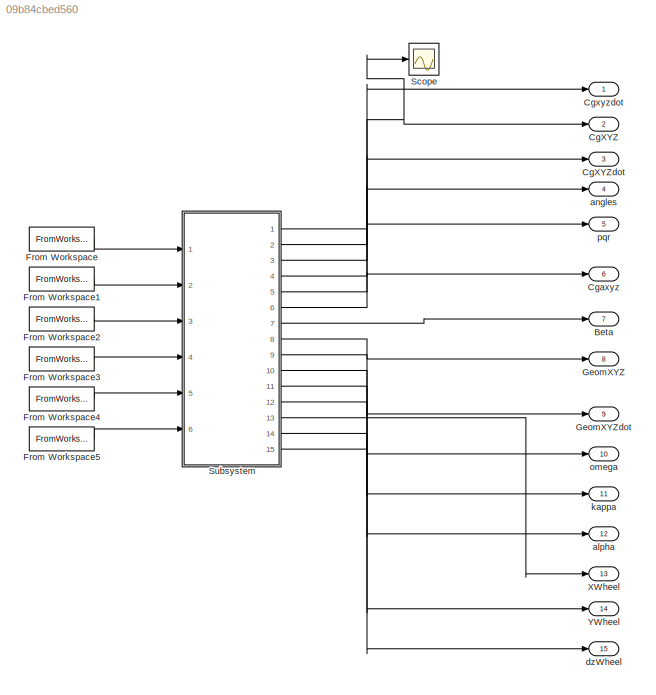
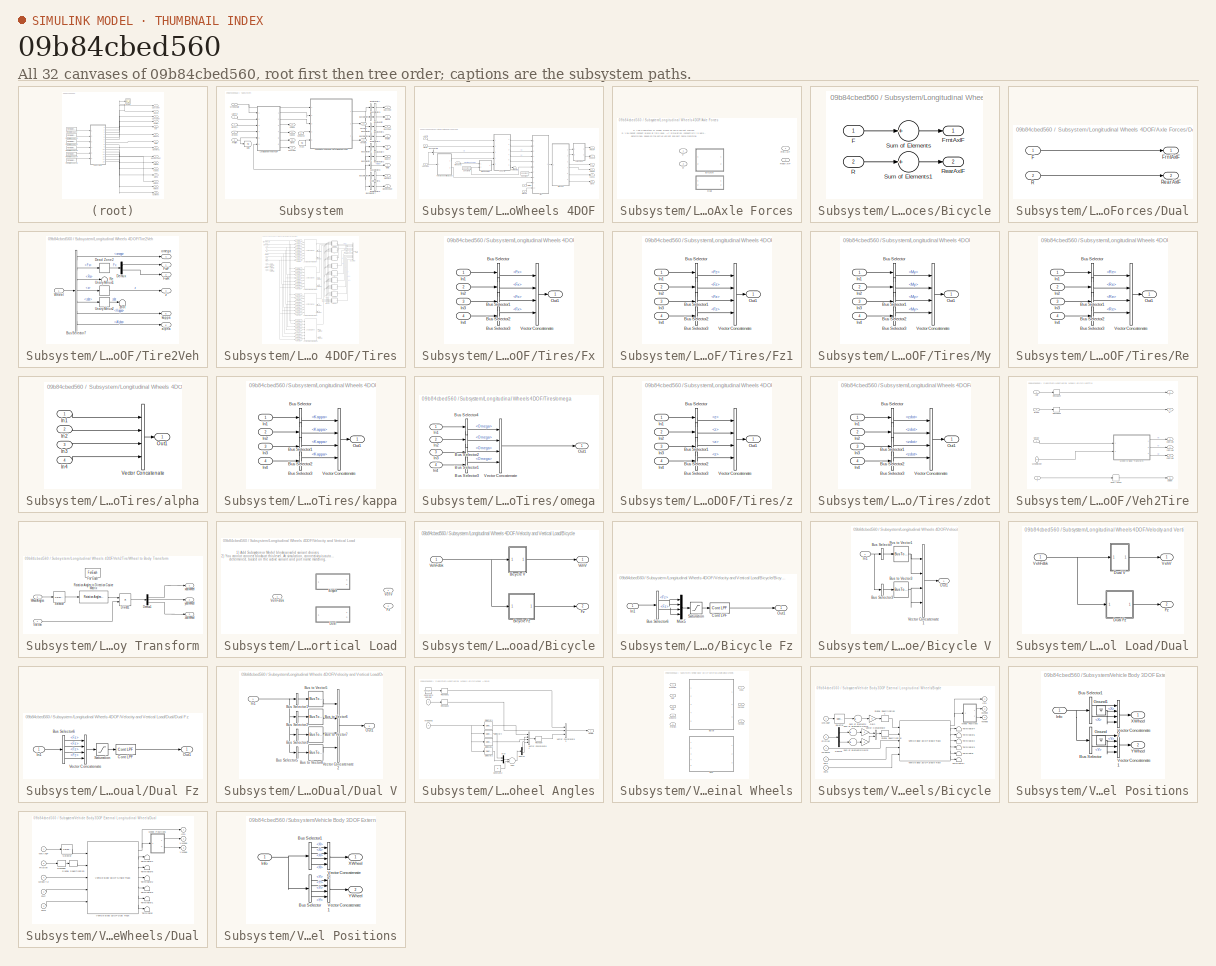
[diagram: thumbnail index - all 32 canvases of the model, root first then tree order]
MODEL slx_09b84cbed560
KIND model
CONFIG AbsTol = auto
CONFIG EnableMultiTasking = off
CONFIG FixedStep = .001
CONFIG MaxStep = auto
CONFIG MinStep = auto
CONFIG RelTol = 3e-3
CONFIG SampleTimeConstraint = Unconstrained
CONFIG Solver = ode1
CONFIG SolverName = ode1
CONFIG StartTime = 0.0
CONFIG StopTime = 25
WORKSPACE source: MAT-file member
WORKSPACE A_mu = 10
WORKSPACE Cps = 2
BLOCK [Outport] Beta
  IconDisplay = Port number
  Port = 7
BLOCK [Outport] CgXYZ
  IconDisplay = Port number
  Port = 2
BLOCK [Outport] CgXYZdot
  IconDisplay = Port number
  Port = 3
BLOCK [Outport] Cgaxyz
  IconDisplay = Port number
  Port = 6
BLOCK [Outport] Cgxyzdot
  IconDisplay = Port number
BLOCK [FromWorkspace] From Workspace
  SampleTime = 0
  VariableName = inAxleTrq
  ZeroCross = on
BLOCK [FromWorkspace] From Workspace1
  SampleTime = 0
  VariableName = inBrkPrs
  ZeroCross = on
BLOCK [FromWorkspace] From Workspace2
  SampleTime = 0
  VariableName = inWindXYZ
  ZeroCross = on
BLOCK [FromWorkspace] From Workspace3
  SampleTime = 0
  VariableName = inWheelAngle
  ZeroCross = on
BLOCK [FromWorkspace] From Workspace4
  SampleTime = 0
  VariableName = inGround
  ZeroCross = on
BLOCK [FromWorkspace] From Workspace5
  SampleTime = 0
  VariableName = inFriction
  ZeroCross = on
BLOCK [Outport] GeomXYZ
  IconDisplay = Port number
  Port = 8
BLOCK [Outport] GeomXYZdot
  IconDisplay = Port number
  Port = 9
  Unit = m/s
BLOCK [Scope] Scope
  Floating = off
  NumInputPorts = 1
  Ports = [1]
  ScopeSpecificationString = Simulink.scopes.TimeScopeBlockCfg('CurrentConfiguration', extmgr.ConfigurationSet(extmgr.Configuration('Core','General UI',true),extmgr.Configuration('Core','Source UI',true),extmgr.Configuration('Sources','WiredSimulink',true),extmgr.Configuration('Visuals','Time Domain',true,'SerializedDisplays',{struct('MinYLimReal','-33.1571','MaxYLimReal','279.81993','YLabelReal','','MinYLimMag','0.00000','Ma...<+1428ch>
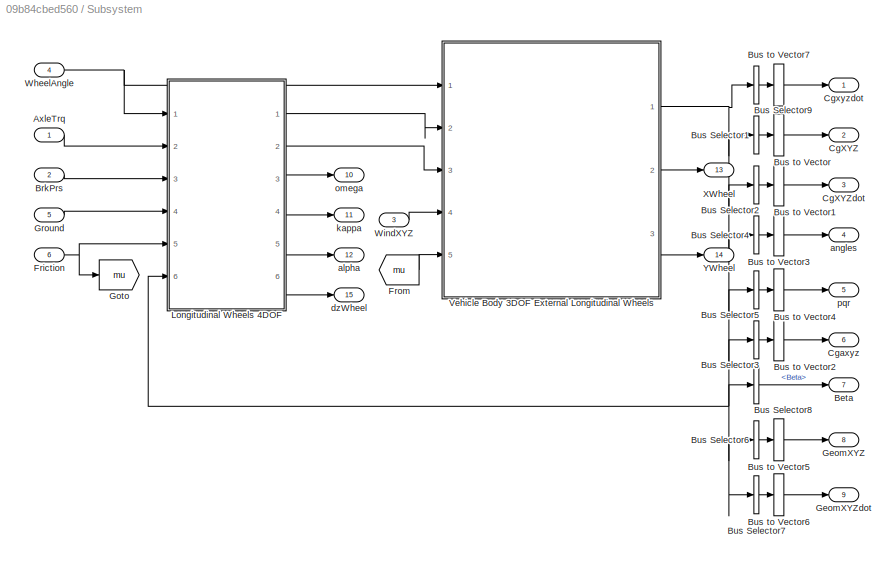
BLOCK [SubSystem] Subsystem
  Ports = [6, 15]
  RequestExecContextInheritance = off
BLOCK [Inport] Subsystem/AxleTrq
  IconDisplay = Port number
  PortDimensions = 4
  Unit = N*m
BLOCK [Outport] Subsystem/Beta
  IconDisplay = Port number
  Port = 7
BLOCK [Inport] Subsystem/BrkPrs
  IconDisplay = Port number
  Port = 2
  PortDimensions = 4
  Unit = Pa
BLOCK [BusSelector] Subsystem/Bus Selector1
  OutputAsBus = on
  OutputSignals = InertFrm.Cg.Disp.X,InertFrm.Cg.Disp.Y,InertFrm.Cg.Disp.Z
  Ports = [1, 1]
BLOCK [BusSelector] Subsystem/Bus Selector2
  OutputAsBus = on
  OutputSignals = InertFrm.Cg.Vel.Xdot,InertFrm.Cg.Vel.Ydot,InertFrm.Cg.Vel.Zdot
  Ports = [1, 1]
BLOCK [BusSelector] Subsystem/Bus Selector3
  OutputAsBus = on
  OutputSignals = BdyFrm.Cg.Acc.ax,BdyFrm.Cg.Acc.ay,BdyFrm.Cg.Acc.az
  Ports = [1, 1]
BLOCK [BusSelector] Subsystem/Bus Selector4
  OutputAsBus = on
  OutputSignals = InertFrm.Cg.Ang.phi,InertFrm.Cg.Ang.theta,InertFrm.Cg.Ang.psi
  Ports = [1, 1]
BLOCK [BusSelector] Subsystem/Bus Selector5
  OutputAsBus = on
  OutputSignals = BdyFrm.Cg.AngVel.p,BdyFrm.Cg.AngVel.q,BdyFrm.Cg.AngVel.r
  Ports = [1, 1]
BLOCK [BusSelector] Subsystem/Bus Selector6
  OutputAsBus = on
  OutputSignals = InertFrm.Geom.Disp.X,InertFrm.Geom.Disp.Y,InertFrm.Geom.Disp.Z
  Ports = [1, 1]
BLOCK [BusSelector] Subsystem/Bus Selector7
  OutputAsBus = on
  OutputSignals = InertFrm.Geom.Vel.Xdot,InertFrm.Geom.Vel.Ydot,InertFrm.Geom.Vel.Zdot
  Ports = [1, 1]
BLOCK [BusSelector] Subsystem/Bus Selector8
  OutputAsBus = off
  OutputSignals = BdyFrm.Geom.Ang.Beta
  Ports = [1, 1]
BLOCK [BusSelector] Subsystem/Bus Selector9
  OutputAsBus = on
  OutputSignals = BdyFrm.Cg.Vel.xdot,BdyFrm.Cg.Vel.ydot,BdyFrm.Cg.Vel.zdot
  Ports = [1, 1]
BLOCK [BusToVector] Subsystem/Bus to Vector
BLOCK [BusToVector] Subsystem/Bus to Vector1
BLOCK [BusToVector] Subsystem/Bus to Vector2
BLOCK [BusToVector] Subsystem/Bus to Vector3
BLOCK [BusToVector] Subsystem/Bus to Vector4
BLOCK [BusToVector] Subsystem/Bus to Vector5
BLOCK [BusToVector] Subsystem/Bus to Vector6
BLOCK [BusToVector] Subsystem/Bus to Vector7
BLOCK [Outport] Subsystem/CgXYZ
  IconDisplay = Port number
  Port = 2
BLOCK [Outport] Subsystem/CgXYZdot
  IconDisplay = Port number
  Port = 3
BLOCK [Outport] Subsystem/Cgaxyz
  IconDisplay = Port number
  Port = 6
BLOCK [Outport] Subsystem/Cgxyzdot
  IconDisplay = Port number
BLOCK [Inport] Subsystem/Friction
  IconDisplay = Port number
  Port = 6
  PortDimensions = 4
  Unit = 1
BLOCK [From] Subsystem/From
  GotoTag = mu
BLOCK [Outport] Subsystem/GeomXYZ
  IconDisplay = Port number
  Port = 8
BLOCK [Outport] Subsystem/GeomXYZdot
  IconDisplay = Port number
  Port = 9
  Unit = m/s
BLOCK [Goto] Subsystem/Goto
  GotoTag = mu
BLOCK [Inport] Subsystem/Ground
  IconDisplay = Port number
  Port = 5
  PortDimensions = 4
  Unit = m
BLOCK [SubSystem] Subsystem/Longitudinal Wheels 4DOF
  AttributesFormatString = %<wheelMode>
  Ports = [6, 6]
  RequestExecContextInheritance = off
  VariantControl = 1
BLOCK [SubSystem] Subsystem/Longitudinal Wheels 4DOF/Axle Forces
  LabelModeActiveChoice = 0
  Ports = [2, 2]
  RequestExecContextInheritance = off
  Variant = on
  VariantControlMode = Label
BLOCK [SubSystem] Subsystem/Longitudinal Wheels 4DOF/Axle Forces/Bicycle
  Ports = [2, 2]
  RequestExecContextInheritance = off
  VariantControl = 0
BLOCK [Inport] Subsystem/Longitudinal Wheels 4DOF/Axle Forces/Bicycle/F
  IconDisplay = Port number
BLOCK [Outport] Subsystem/Longitudinal Wheels 4DOF/Axle Forces/Bicycle/FrntAxlF
  IconDisplay = Port number
  Unit = N
BLOCK [Inport] Subsystem/Longitudinal Wheels 4DOF/Axle Forces/Bicycle/R
  IconDisplay = Port number
  Port = 2
BLOCK [Outport] Subsystem/Longitudinal Wheels 4DOF/Axle Forces/Bicycle/RearAxlF
  IconDisplay = Port number
  Port = 2
  Unit = N
BLOCK [Sum] Subsystem/Longitudinal Wheels 4DOF/Axle Forces/Bicycle/Sum of Elements
  InputSameDT = off
  Inputs = +
  OutDataTypeStr = Inherit: Inherit via internal rule
  Ports = [1, 1]
  SaturateOnIntegerOverflow = off
BLOCK [Sum] Subsystem/Longitudinal Wheels 4DOF/Axle Forces/Bicycle/Sum of Elements1
  InputSameDT = off
  Inputs = +
  OutDataTypeStr = Inherit: Inherit via internal rule
  Ports = [1, 1]
  SaturateOnIntegerOverflow = off
BLOCK [SubSystem] Subsystem/Longitudinal Wheels 4DOF/Axle Forces/Dual
  Ports = [2, 2]
  RequestExecContextInheritance = off
  VariantControl = 1
BLOCK [Inport] Subsystem/Longitudinal Wheels 4DOF/Axle Forces/Dual/F
  IconDisplay = Port number
BLOCK [Outport] Subsystem/Longitudinal Wheels 4DOF/Axle Forces/Dual/FrntAxlF
  IconDisplay = Port number
  Unit = N
BLOCK [Inport] Subsystem/Longitudinal Wheels 4DOF/Axle Forces/Dual/R
  IconDisplay = Port number
  Port = 2
BLOCK [Outport] Subsystem/Longitudinal Wheels 4DOF/Axle Forces/Dual/RearAxlF
  IconDisplay = Port number
  Port = 2
  Unit = N
BLOCK [Inport] Subsystem/Longitudinal Wheels 4DOF/Axle Forces/F
  IconDisplay = Port number
BLOCK [Outport] Subsystem/Longitudinal Wheels 4DOF/Axle Forces/FrntAxlF
  IconDisplay = Port number
  Unit = N
BLOCK [Inport] Subsystem/Longitudinal Wheels 4DOF/Axle Forces/R
  IconDisplay = Port number
  Port = 2
BLOCK [Outport] Subsystem/Longitudinal Wheels 4DOF/Axle Forces/RearAxlF
  IconDisplay = Port number
  Port = 2
  Unit = N
BLOCK [Inport] Subsystem/Longitudinal Wheels 4DOF/AxleTrq
  IconDisplay = Port number
  Port = 2
BLOCK [Inport] Subsystem/Longitudinal Wheels 4DOF/BrkPrs
  IconDisplay = Port number
  Port = 3
BLOCK [BusSelector] Subsystem/Longitudinal Wheels 4DOF/Bus Selector5
  OutputAsBus = off
  OutputSignals = BdyFrm.Cg.AngVel.r
  Ports = [1, 1]
BLOCK [Reference] Subsystem/Longitudinal Wheels 4DOF/Constant  REF=vehdynlibtirecommon/Constant
  Ports = [0, 1]
  SourceBlock = vehdynlibtirecommon/Constant
BLOCK [Reference] Subsystem/Longitudinal Wheels 4DOF/Constant3  REF=vehdynlibtirecommon/Constant
  Ports = [0, 1]
  SourceBlock = vehdynlibtirecommon/Constant
BLOCK [Inport] Subsystem/Longitudinal Wheels 4DOF/Friction
  IconDisplay = Port number
  Port = 5
  PortDimensions = 4
BLOCK [Outport] Subsystem/Longitudinal Wheels 4DOF/FrntAxlF
  IconDisplay = Port number
  Unit = N
BLOCK [Inport] Subsystem/Longitudinal Wheels 4DOF/Ground
  IconDisplay = Port number
  Port = 4
  PortDimensions = 4
BLOCK [Outport] Subsystem/Longitudinal Wheels 4DOF/RearAxlF
  IconDisplay = Port number
  Port = 2
  Unit = N
BLOCK [Terminator] Subsystem/Longitudinal Wheels 4DOF/Terminator2
BLOCK [SubSystem] Subsystem/Longitudinal Wheels 4DOF/Tire2Veh
  Ports = [1, 6]
  RequestExecContextInheritance = off
BLOCK [BusSelector] Subsystem/Longitudinal Wheels 4DOF/Tire2Veh/Bus Selector7
  OutputAsBus = off
  OutputSignals = omega,Fx,Re,z,zdot,Kappa,Alpha
  Ports = [1, 7]
BLOCK [DeadZone] Subsystem/Longitudinal Wheels 4DOF/Tire2Veh/Dead Zone2
  LowerValue = -5
  UpperValue = 5
  ZeroCross = off
BLOCK [Demux] Subsystem/Longitudinal Wheels 4DOF/Tire2Veh/Demux
  DisplayOption = bar
  Outputs = [2,2]
  Ports = [1, 2]
BLOCK [Outport] Subsystem/Longitudinal Wheels 4DOF/Tire2Veh/FwF
  IconDisplay = Port number
BLOCK [Outport] Subsystem/Longitudinal Wheels 4DOF/Tire2Veh/FwR
  IconDisplay = Port number
  Port = 2
BLOCK [Terminator] Subsystem/Longitudinal Wheels 4DOF/Tire2Veh/Re
BLOCK [UnaryMinus] Subsystem/Longitudinal Wheels 4DOF/Tire2Veh/Unary Minus1
BLOCK [UnaryMinus] Subsystem/Longitudinal Wheels 4DOF/Tire2Veh/Unary Minus2
BLOCK [Inport] Subsystem/Longitudinal Wheels 4DOF/Tire2Veh/Wheel
  IconDisplay = Port number
BLOCK [Outport] Subsystem/Longitudinal Wheels 4DOF/Tire2Veh/alpha
  IconDisplay = Port number
  Port = 6
BLOCK [Outport] Subsystem/Longitudinal Wheels 4DOF/Tire2Veh/kappa
  IconDisplay = Port number
  Port = 5
BLOCK [Outport] Subsystem/Longitudinal Wheels 4DOF/Tire2Veh/omega
  IconDisplay = Port number
  Port = 4
BLOCK [Outport] Subsystem/Longitudinal Wheels 4DOF/Tire2Veh/z
  IconDisplay = Port number
  Port = 3
BLOCK [Terminator] Subsystem/Longitudinal Wheels 4DOF/Tire2Veh/zdot
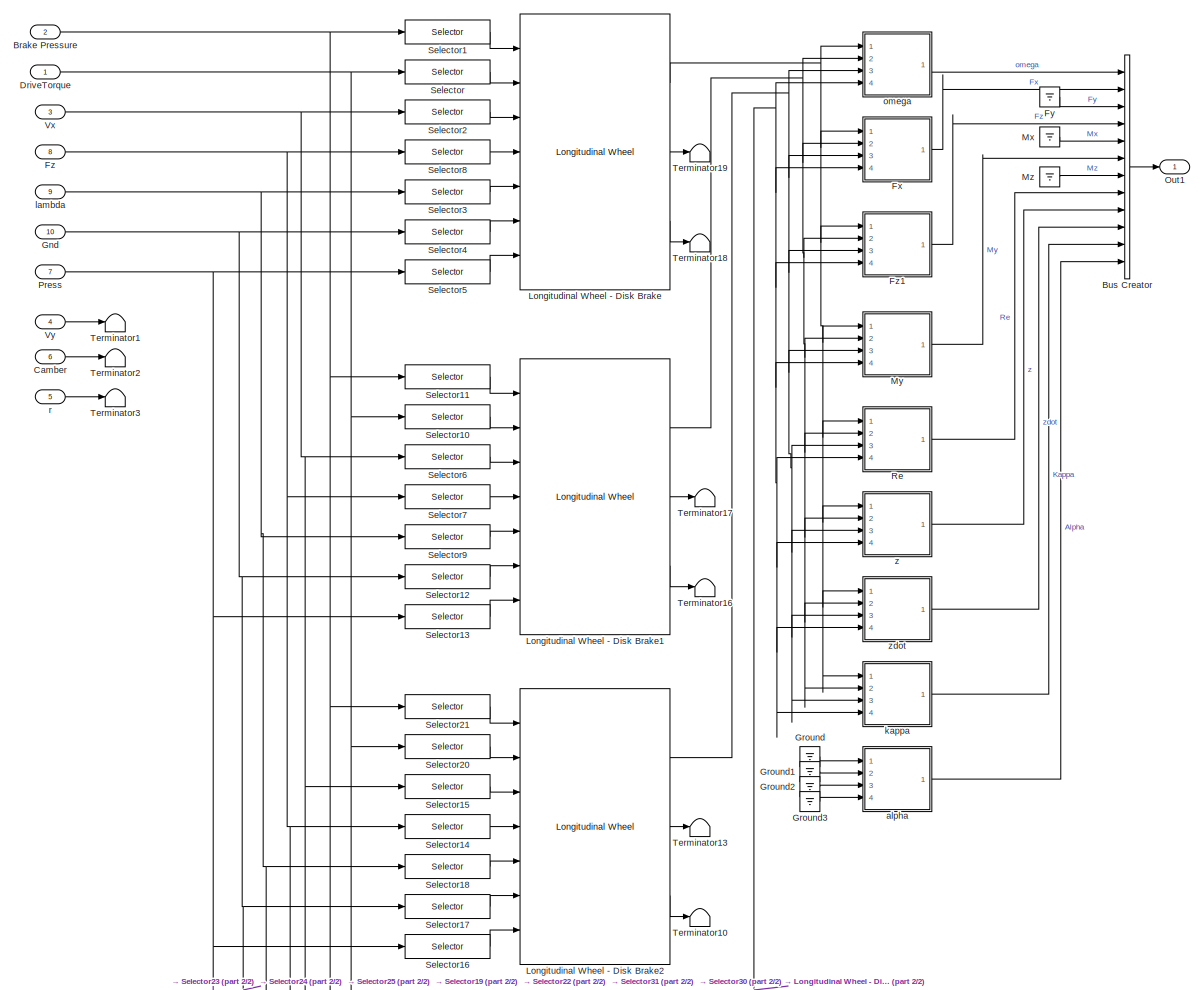
[diagram: Subsystem/Longitudinal Wheels 4DOF/Tires - part 1/2, most of the canvas]
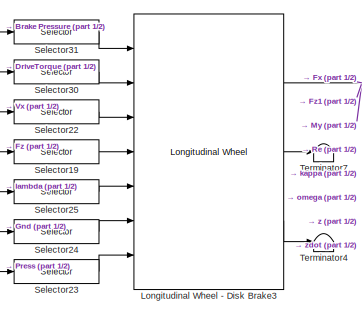
[diagram: Subsystem/Longitudinal Wheels 4DOF/Tires - part 2/2, bottom center region]
BLOCK [SubSystem] Subsystem/Longitudinal Wheels 4DOF/Tires
  Ports = [10, 1]
  RequestExecContextInheritance = off
BLOCK [Inport] Subsystem/Longitudinal Wheels 4DOF/Tires/Brake Pressure
  IconDisplay = Port number
  Port = 2
BLOCK [BusCreator] Subsystem/Longitudinal Wheels 4DOF/Tires/Bus Creator
  DisplayOption = bar
  InheritFromInputs = on
  Inputs = 12
  Ports = [12, 1]
BLOCK [Inport] Subsystem/Longitudinal Wheels 4DOF/Tires/Camber
  IconDisplay = Port number
  Port = 6
BLOCK [Inport] Subsystem/Longitudinal Wheels 4DOF/Tires/DriveTorque
  IconDisplay = Port number
BLOCK [SubSystem] Subsystem/Longitudinal Wheels 4DOF/Tires/Fx
  Ports = [4, 1]
  RequestExecContextInheritance = off
BLOCK [BusSelector] Subsystem/Longitudinal Wheels 4DOF/Tires/Fx/Bus Selector
  OutputAsBus = off
  OutputSignals = Fx
  Ports = [1, 1]
BLOCK [BusSelector] Subsystem/Longitudinal Wheels 4DOF/Tires/Fx/Bus Selector1
  OutputAsBus = off
  OutputSignals = Fx
  Ports = [1, 1]
BLOCK [BusSelector] Subsystem/Longitudinal Wheels 4DOF/Tires/Fx/Bus Selector2
  OutputAsBus = off
  OutputSignals = Fx
  Ports = [1, 1]
BLOCK [BusSelector] Subsystem/Longitudinal Wheels 4DOF/Tires/Fx/Bus Selector3
  OutputAsBus = off
  OutputSignals = Fx
  Ports = [1, 1]
BLOCK [Inport] Subsystem/Longitudinal Wheels 4DOF/Tires/Fx/In1
  IconDisplay = Port number
BLOCK [Inport] Subsystem/Longitudinal Wheels 4DOF/Tires/Fx/In2
  IconDisplay = Port number
  Port = 2
BLOCK [Inport] Subsystem/Longitudinal Wheels 4DOF/Tires/Fx/In3
  IconDisplay = Port number
  Port = 3
BLOCK [Inport] Subsystem/Longitudinal Wheels 4DOF/Tires/Fx/In4
  IconDisplay = Port number
  Port = 4
BLOCK [Outport] Subsystem/Longitudinal Wheels 4DOF/Tires/Fx/Out1
  IconDisplay = Port number
BLOCK [Concatenate] Subsystem/Longitudinal Wheels 4DOF/Tires/Fx/Vector Concatenate
  NumInputs = 4
  Ports = [4, 1]
BLOCK [Ground] Subsystem/Longitudinal Wheels 4DOF/Tires/Fy
BLOCK [Inport] Subsystem/Longitudinal Wheels 4DOF/Tires/Fz
  IconDisplay = Port number
  Port = 8
BLOCK [SubSystem] Subsystem/Longitudinal Wheels 4DOF/Tires/Fz1
  Ports = [4, 1]
  RequestExecContextInheritance = off
BLOCK [BusSelector] Subsystem/Longitudinal Wheels 4DOF/Tires/Fz1/Bus Selector
  OutputAsBus = off
  OutputSignals = Fz
  Ports = [1, 1]
BLOCK [BusSelector] Subsystem/Longitudinal Wheels 4DOF/Tires/Fz1/Bus Selector1
  OutputAsBus = off
  OutputSignals = Fz
  Ports = [1, 1]
BLOCK [BusSelector] Subsystem/Longitudinal Wheels 4DOF/Tires/Fz1/Bus Selector2
  OutputAsBus = off
  OutputSignals = Fz
  Ports = [1, 1]
BLOCK [BusSelector] Subsystem/Longitudinal Wheels 4DOF/Tires/Fz1/Bus Selector3
  OutputAsBus = off
  OutputSignals = Fz
  Ports = [1, 1]
BLOCK [Inport] Subsystem/Longitudinal Wheels 4DOF/Tires/Fz1/In1
  IconDisplay = Port number
BLOCK [Inport] Subsystem/Longitudinal Wheels 4DOF/Tires/Fz1/In2
  IconDisplay = Port number
  Port = 2
BLOCK [Inport] Subsystem/Longitudinal Wheels 4DOF/Tires/Fz1/In3
  IconDisplay = Port number
  Port = 3
BLOCK [Inport] Subsystem/Longitudinal Wheels 4DOF/Tires/Fz1/In4
  IconDisplay = Port number
  Port = 4
BLOCK [Outport] Subsystem/Longitudinal Wheels 4DOF/Tires/Fz1/Out1
  IconDisplay = Port number
BLOCK [Concatenate] Subsystem/Longitudinal Wheels 4DOF/Tires/Fz1/Vector Concatenate
  NumInputs = 4
  Ports = [4, 1]
BLOCK [Inport] Subsystem/Longitudinal Wheels 4DOF/Tires/Gnd
  IconDisplay = Port number
  Port = 10
BLOCK [Ground] Subsystem/Longitudinal Wheels 4DOF/Tires/Ground
BLOCK [Ground] Subsystem/Longitudinal Wheels 4DOF/Tires/Ground1
BLOCK [Ground] Subsystem/Longitudinal Wheels 4DOF/Tires/Ground2
BLOCK [Ground] Subsystem/Longitudinal Wheels 4DOF/Tires/Ground3
BLOCK [Reference] Subsystem/Longitudinal Wheels 4DOF/Tires/Longitudinal Wheel - Disk Brake  REF=autolibshared/Longitudinal Wheel
  AttributesFormatString = Fx Type: %<FxType>\nRolling Type: %<rollingType>
  Ports = [7, 3]
  SourceBlock = autolibshared/Longitudinal Wheel
  SourceProductBaseCode = PW
  SourceProductName = Powertrain Blockset
  SourceType = Longitudinal Wheel
BLOCK [Reference] Subsystem/Longitudinal Wheels 4DOF/Tires/Longitudinal Wheel - Disk Brake1  REF=autolibshared/Longitudinal Wheel
  AttributesFormatString = Fx Type: %<FxType>\nRolling Type: %<rollingType>
  Ports = [7, 3]
  SourceBlock = autolibshared/Longitudinal Wheel
  SourceProductBaseCode = PW
  SourceProductName = Powertrain Blockset
  SourceType = Longitudinal Wheel
BLOCK [Reference] Subsystem/Longitudinal Wheels 4DOF/Tires/Longitudinal Wheel - Disk Brake2  REF=autolibshared/Longitudinal Wheel
  AttributesFormatString = Fx Type: %<FxType>\nRolling Type: %<rollingType>
  Ports = [7, 3]
  SourceBlock = autolibshared/Longitudinal Wheel
  SourceProductBaseCode = PW
  SourceProductName = Powertrain Blockset
  SourceType = Longitudinal Wheel
BLOCK [Reference] Subsystem/Longitudinal Wheels 4DOF/Tires/Longitudinal Wheel - Disk Brake3  REF=autolibshared/Longitudinal Wheel
  AttributesFormatString = Fx Type: %<FxType>\nRolling Type: %<rollingType>
  Ports = [7, 3]
  SourceBlock = autolibshared/Longitudinal Wheel
  SourceProductBaseCode = PW
  SourceProductName = Powertrain Blockset
  SourceType = Longitudinal Wheel
BLOCK [Ground] Subsystem/Longitudinal Wheels 4DOF/Tires/Mx
BLOCK [SubSystem] Subsystem/Longitudinal Wheels 4DOF/Tires/My
  Ports = [4, 1]
  RequestExecContextInheritance = off
BLOCK [BusSelector] Subsystem/Longitudinal Wheels 4DOF/Tires/My/Bus Selector
  OutputAsBus = off
  OutputSignals = My
  Ports = [1, 1]
BLOCK [BusSelector] Subsystem/Longitudinal Wheels 4DOF/Tires/My/Bus Selector1
  OutputAsBus = off
  OutputSignals = My
  Ports = [1, 1]
BLOCK [BusSelector] Subsystem/Longitudinal Wheels 4DOF/Tires/My/Bus Selector2
  OutputAsBus = off
  OutputSignals = My
  Ports = [1, 1]
BLOCK [BusSelector] Subsystem/Longitudinal Wheels 4DOF/Tires/My/Bus Selector3
  OutputAsBus = off
  OutputSignals = My
  Ports = [1, 1]
BLOCK [Inport] Subsystem/Longitudinal Wheels 4DOF/Tires/My/In1
  IconDisplay = Port number
BLOCK [Inport] Subsystem/Longitudinal Wheels 4DOF/Tires/My/In2
  IconDisplay = Port number
  Port = 2
BLOCK [Inport] Subsystem/Longitudinal Wheels 4DOF/Tires/My/In3
  IconDisplay = Port number
  Port = 3
BLOCK [Inport] Subsystem/Longitudinal Wheels 4DOF/Tires/My/In4
  IconDisplay = Port number
  Port = 4
BLOCK [Outport] Subsystem/Longitudinal Wheels 4DOF/Tires/My/Out1
  IconDisplay = Port number
  PortDimensions = 4
BLOCK [Concatenate] Subsystem/Longitudinal Wheels 4DOF/Tires/My/Vector Concatenate
  NumInputs = 4
  Ports = [4, 1]
BLOCK [Ground] Subsystem/Longitudinal Wheels 4DOF/Tires/Mz
BLOCK [Outport] Subsystem/Longitudinal Wheels 4DOF/Tires/Out1
  IconDisplay = Port number
BLOCK [Inport] Subsystem/Longitudinal Wheels 4DOF/Tires/Press
  IconDisplay = Port number
  Port = 7
BLOCK [SubSystem] Subsystem/Longitudinal Wheels 4DOF/Tires/Re
  Ports = [4, 1]
  RequestExecContextInheritance = off
BLOCK [BusSelector] Subsystem/Longitudinal Wheels 4DOF/Tires/Re/Bus Selector
  OutputAsBus = off
  OutputSignals = Re
  Ports = [1, 1]
BLOCK [BusSelector] Subsystem/Longitudinal Wheels 4DOF/Tires/Re/Bus Selector1
  OutputAsBus = off
  OutputSignals = Re
  Ports = [1, 1]
BLOCK [BusSelector] Subsystem/Longitudinal Wheels 4DOF/Tires/Re/Bus Selector2
  OutputAsBus = off
  OutputSignals = Re
  Ports = [1, 1]
BLOCK [BusSelector] Subsystem/Longitudinal Wheels 4DOF/Tires/Re/Bus Selector3
  OutputAsBus = off
  OutputSignals = Re
  Ports = [1, 1]
BLOCK [Inport] Subsystem/Longitudinal Wheels 4DOF/Tires/Re/In1
  IconDisplay = Port number
BLOCK [Inport] Subsystem/Longitudinal Wheels 4DOF/Tires/Re/In2
  IconDisplay = Port number
  Port = 2
BLOCK [Inport] Subsystem/Longitudinal Wheels 4DOF/Tires/Re/In3
  IconDisplay = Port number
  Port = 3
BLOCK [Inport] Subsystem/Longitudinal Wheels 4DOF/Tires/Re/In4
  IconDisplay = Port number
  Port = 4
BLOCK [Outport] Subsystem/Longitudinal Wheels 4DOF/Tires/Re/Out1
  IconDisplay = Port number
  PortDimensions = 4
BLOCK [Concatenate] Subsystem/Longitudinal Wheels 4DOF/Tires/Re/Vector Concatenate
  NumInputs = 4
  Ports = [4, 1]
BLOCK [Selector] Subsystem/Longitudinal Wheels 4DOF/Tires/Selector
  IndexOptions = Index vector (dialog)
  Indices = 1
  InputPortWidth = 4
  OutputSizes = 1
  Ports = [1, 1]
BLOCK [Selector] Subsystem/Longitudinal Wheels 4DOF/Tires/Selector1
  IndexOptions = Index vector (dialog)
  Indices = 1
  InputPortWidth = 4
  OutputSizes = 1
  Ports = [1, 1]
BLOCK [Selector] Subsystem/Longitudinal Wheels 4DOF/Tires/Selector10
  IndexOptions = Index vector (dialog)
  Indices = 2
  InputPortWidth = 4
  OutputSizes = 1
  Ports = [1, 1]
BLOCK [Selector] Subsystem/Longitudinal Wheels 4DOF/Tires/Selector11
  IndexOptions = Index vector (dialog)
  Indices = 2
  InputPortWidth = 4
  OutputSizes = 1
  Ports = [1, 1]
BLOCK [Selector] Subsystem/Longitudinal Wheels 4DOF/Tires/Selector12
  IndexOptions = Index vector (dialog)
  Indices = 2
  InputPortWidth = 4
  OutputSizes = 1
  Ports = [1, 1]
BLOCK [Selector] Subsystem/Longitudinal Wheels 4DOF/Tires/Selector13
  IndexOptions = Index vector (dialog)
  Indices = 2
  InputPortWidth = 4
  OutputSizes = 1
  Ports = [1, 1]
BLOCK [Selector] Subsystem/Longitudinal Wheels 4DOF/Tires/Selector14
  IndexOptions = Index vector (dialog)
  Indices = 3
  InputPortWidth = 4
  OutputSizes = 1
  Ports = [1, 1]
BLOCK [Selector] Subsystem/Longitudinal Wheels 4DOF/Tires/Selector15
  IndexOptions = Index vector (dialog)
  Indices = 3
  InputPortWidth = 4
  OutputSizes = 1
  Ports = [1, 1]
BLOCK [Selector] Subsystem/Longitudinal Wheels 4DOF/Tires/Selector16
  IndexOptions = Index vector (dialog)
  Indices = 3
  InputPortWidth = 4
  OutputSizes = 1
  Ports = [1, 1]
BLOCK [Selector] Subsystem/Longitudinal Wheels 4DOF/Tires/Selector17
  IndexOptions = Index vector (dialog)
  Indices = 3
  InputPortWidth = 4
  OutputSizes = 1
  Ports = [1, 1]
BLOCK [Selector] Subsystem/Longitudinal Wheels 4DOF/Tires/Selector18
  IndexOptions = Index vector (dialog)
  Indices = 3
  InputPortWidth = 4
  OutputSizes = 1
  Ports = [1, 1]
BLOCK [Selector] Subsystem/Longitudinal Wheels 4DOF/Tires/Selector19
  IndexOptions = Index vector (dialog)
  Indices = 4
  InputPortWidth = 4
  OutputSizes = 1
  Ports = [1, 1]
BLOCK [Selector] Subsystem/Longitudinal Wheels 4DOF/Tires/Selector2
  IndexOptions = Index vector (dialog)
  Indices = 1
  InputPortWidth = 4
  OutputSizes = 1
  Ports = [1, 1]
BLOCK [Selector] Subsystem/Longitudinal Wheels 4DOF/Tires/Selector20
  IndexOptions = Index vector (dialog)
  Indices = 3
  InputPortWidth = 4
  OutputSizes = 1
  Ports = [1, 1]
BLOCK [Selector] Subsystem/Longitudinal Wheels 4DOF/Tires/Selector21
  IndexOptions = Index vector (dialog)
  Indices = 3
  InputPortWidth = 4
  OutputSizes = 1
  Ports = [1, 1]
BLOCK [Selector] Subsystem/Longitudinal Wheels 4DOF/Tires/Selector22
  IndexOptions = Index vector (dialog)
  Indices = 4
  InputPortWidth = 4
  OutputSizes = 1
  Ports = [1, 1]
BLOCK [Selector] Subsystem/Longitudinal Wheels 4DOF/Tires/Selector23
  IndexOptions = Index vector (dialog)
  Indices = 4
  InputPortWidth = 4
  OutputSizes = 1
  Ports = [1, 1]
BLOCK [Selector] Subsystem/Longitudinal Wheels 4DOF/Tires/Selector24
  IndexOptions = Index vector (dialog)
  Indices = 4
  InputPortWidth = 4
  OutputSizes = 1
  Ports = [1, 1]
BLOCK [Selector] Subsystem/Longitudinal Wheels 4DOF/Tires/Selector25
  IndexOptions = Index vector (dialog)
  Indices = 4
  InputPortWidth = 4
  OutputSizes = 1
  Ports = [1, 1]
BLOCK [Selector] Subsystem/Longitudinal Wheels 4DOF/Tires/Selector3
  IndexOptions = Index vector (dialog)
  Indices = 1
  InputPortWidth = 4
  OutputSizes = 1
  Ports = [1, 1]
BLOCK [Selector] Subsystem/Longitudinal Wheels 4DOF/Tires/Selector30
  IndexOptions = Index vector (dialog)
  Indices = 4
  InputPortWidth = 4
  OutputSizes = 1
  Ports = [1, 1]
BLOCK [Selector] Subsystem/Longitudinal Wheels 4DOF/Tires/Selector31
  IndexOptions = Index vector (dialog)
  Indices = 4
  InputPortWidth = 4
  OutputSizes = 1
  Ports = [1, 1]
BLOCK [Selector] Subsystem/Longitudinal Wheels 4DOF/Tires/Selector4
  IndexOptions = Index vector (dialog)
  Indices = 1
  InputPortWidth = 4
  OutputSizes = 1
  Ports = [1, 1]
BLOCK [Selector] Subsystem/Longitudinal Wheels 4DOF/Tires/Selector5
  IndexOptions = Index vector (dialog)
  Indices = 1
  InputPortWidth = 4
  OutputSizes = 1
  Ports = [1, 1]
BLOCK [Selector] Subsystem/Longitudinal Wheels 4DOF/Tires/Selector6
  IndexOptions = Index vector (dialog)
  Indices = 2
  InputPortWidth = 4
  OutputSizes = 1
  Ports = [1, 1]
BLOCK [Selector] Subsystem/Longitudinal Wheels 4DOF/Tires/Selector7
  IndexOptions = Index vector (dialog)
  Indices = 2
  InputPortWidth = 4
  OutputSizes = 1
  Ports = [1, 1]
BLOCK [Selector] Subsystem/Longitudinal Wheels 4DOF/Tires/Selector8
  IndexOptions = Index vector (dialog)
  Indices = 1
  InputPortWidth = 4
  OutputSizes = 1
  Ports = [1, 1]
BLOCK [Selector] Subsystem/Longitudinal Wheels 4DOF/Tires/Selector9
  IndexOptions = Index vector (dialog)
  Indices = 2
  InputPortWidth = 4
  OutputSizes = 1
  Ports = [1, 1]
BLOCK [Terminator] Subsystem/Longitudinal Wheels 4DOF/Tires/Terminator1
BLOCK [Terminator] Subsystem/Longitudinal Wheels 4DOF/Tires/Terminator10
BLOCK [Terminator] Subsystem/Longitudinal Wheels 4DOF/Tires/Terminator13
BLOCK [Terminator] Subsystem/Longitudinal Wheels 4DOF/Tires/Terminator16
BLOCK [Terminator] Subsystem/Longitudinal Wheels 4DOF/Tires/Terminator17
BLOCK [Terminator] Subsystem/Longitudinal Wheels 4DOF/Tires/Terminator18
BLOCK [Terminator] Subsystem/Longitudinal Wheels 4DOF/Tires/Terminator19
BLOCK [Terminator] Subsystem/Longitudinal Wheels 4DOF/Tires/Terminator2
BLOCK [Terminator] Subsystem/Longitudinal Wheels 4DOF/Tires/Terminator3
BLOCK [Terminator] Subsystem/Longitudinal Wheels 4DOF/Tires/Terminator4
BLOCK [Terminator] Subsystem/Longitudinal Wheels 4DOF/Tires/Terminator7
BLOCK [Inport] Subsystem/Longitudinal Wheels 4DOF/Tires/Vx
  IconDisplay = Port number
  Port = 3
BLOCK [Inport] Subsystem/Longitudinal Wheels 4DOF/Tires/Vy
  IconDisplay = Port number
  Port = 4
BLOCK [SubSystem] Subsystem/Longitudinal Wheels 4DOF/Tires/alpha
  Ports = [4, 1]
  RequestExecContextInheritance = off
BLOCK [Inport] Subsystem/Longitudinal Wheels 4DOF/Tires/alpha/In1
  IconDisplay = Port number
BLOCK [Inport] Subsystem/Longitudinal Wheels 4DOF/Tires/alpha/In2
  IconDisplay = Port number
  Port = 2
BLOCK [Inport] Subsystem/Longitudinal Wheels 4DOF/Tires/alpha/In3
  IconDisplay = Port number
  Port = 3
BLOCK [Inport] Subsystem/Longitudinal Wheels 4DOF/Tires/alpha/In4
  IconDisplay = Port number
  Port = 4
BLOCK [Outport] Subsystem/Longitudinal Wheels 4DOF/Tires/alpha/Out1
  IconDisplay = Port number
  PortDimensions = 4
BLOCK [Concatenate] Subsystem/Longitudinal Wheels 4DOF/Tires/alpha/Vector Concatenate
  NumInputs = 4
  Ports = [4, 1]
BLOCK [SubSystem] Subsystem/Longitudinal Wheels 4DOF/Tires/kappa
  Ports = [4, 1]
  RequestExecContextInheritance = off
BLOCK [BusSelector] Subsystem/Longitudinal Wheels 4DOF/Tires/kappa/Bus Selector
  OutputAsBus = off
  OutputSignals = Kappa
  Ports = [1, 1]
BLOCK [BusSelector] Subsystem/Longitudinal Wheels 4DOF/Tires/kappa/Bus Selector1
  OutputAsBus = off
  OutputSignals = Kappa
  Ports = [1, 1]
BLOCK [BusSelector] Subsystem/Longitudinal Wheels 4DOF/Tires/kappa/Bus Selector2
  OutputAsBus = off
  OutputSignals = Kappa
  Ports = [1, 1]
BLOCK [BusSelector] Subsystem/Longitudinal Wheels 4DOF/Tires/kappa/Bus Selector3
  OutputAsBus = off
  OutputSignals = Kappa
  Ports = [1, 1]
BLOCK [Inport] Subsystem/Longitudinal Wheels 4DOF/Tires/kappa/In1
  IconDisplay = Port number
BLOCK [Inport] Subsystem/Longitudinal Wheels 4DOF/Tires/kappa/In2
  IconDisplay = Port number
  Port = 2
BLOCK [Inport] Subsystem/Longitudinal Wheels 4DOF/Tires/kappa/In3
  IconDisplay = Port number
  Port = 3
BLOCK [Inport] Subsystem/Longitudinal Wheels 4DOF/Tires/kappa/In4
  IconDisplay = Port number
  Port = 4
BLOCK [Outport] Subsystem/Longitudinal Wheels 4DOF/Tires/kappa/Out1
  IconDisplay = Port number
  PortDimensions = 4
BLOCK [Concatenate] Subsystem/Longitudinal Wheels 4DOF/Tires/kappa/Vector Concatenate
  NumInputs = 4
  Ports = [4, 1]
BLOCK [Inport] Subsystem/Longitudinal Wheels 4DOF/Tires/lambda
  IconDisplay = Port number
  Port = 9
BLOCK [SubSystem] Subsystem/Longitudinal Wheels 4DOF/Tires/omega
  Ports = [4, 1]
  RequestExecContextInheritance = off
BLOCK [BusSelector] Subsystem/Longitudinal Wheels 4DOF/Tires/omega/Bus Selector1
  OutputAsBus = off
  OutputSignals = Omega
  Ports = [1, 1]
BLOCK [BusSelector] Subsystem/Longitudinal Wheels 4DOF/Tires/omega/Bus Selector2
  OutputAsBus = off
  OutputSignals = Omega
  Ports = [1, 1]
BLOCK [BusSelector] Subsystem/Longitudinal Wheels 4DOF/Tires/omega/Bus Selector3
  OutputAsBus = off
  OutputSignals = Omega
  Ports = [1, 1]
BLOCK [BusSelector] Subsystem/Longitudinal Wheels 4DOF/Tires/omega/Bus Selector4
  OutputAsBus = off
  OutputSignals = Omega
  Ports = [1, 1]
BLOCK [Inport] Subsystem/Longitudinal Wheels 4DOF/Tires/omega/In1
  IconDisplay = Port number
BLOCK [Inport] Subsystem/Longitudinal Wheels 4DOF/Tires/omega/In2
  IconDisplay = Port number
  Port = 2
BLOCK [Inport] Subsystem/Longitudinal Wheels 4DOF/Tires/omega/In3
  IconDisplay = Port number
  Port = 3
BLOCK [Inport] Subsystem/Longitudinal Wheels 4DOF/Tires/omega/In4
  IconDisplay = Port number
  Port = 4
BLOCK [Outport] Subsystem/Longitudinal Wheels 4DOF/Tires/omega/Out1
  IconDisplay = Port number
BLOCK [Concatenate] Subsystem/Longitudinal Wheels 4DOF/Tires/omega/Vector Concatenate
  NumInputs = 4
  Ports = [4, 1]
BLOCK [Inport] Subsystem/Longitudinal Wheels 4DOF/Tires/r
  IconDisplay = Port number
  Port = 5
BLOCK [SubSystem] Subsystem/Longitudinal Wheels 4DOF/Tires/z
  Ports = [4, 1]
  RequestExecContextInheritance = off
BLOCK [BusSelector] Subsystem/Longitudinal Wheels 4DOF/Tires/z/Bus Selector
  OutputAsBus = off
  OutputSignals = z
  Ports = [1, 1]
BLOCK [BusSelector] Subsystem/Longitudinal Wheels 4DOF/Tires/z/Bus Selector1
  OutputAsBus = off
  OutputSignals = z
  Ports = [1, 1]
BLOCK [BusSelector] Subsystem/Longitudinal Wheels 4DOF/Tires/z/Bus Selector2
  OutputAsBus = off
  OutputSignals = z
  Ports = [1, 1]
BLOCK [BusSelector] Subsystem/Longitudinal Wheels 4DOF/Tires/z/Bus Selector3
  OutputAsBus = off
  OutputSignals = z
  Ports = [1, 1]
BLOCK [Inport] Subsystem/Longitudinal Wheels 4DOF/Tires/z/In1
  IconDisplay = Port number
BLOCK [Inport] Subsystem/Longitudinal Wheels 4DOF/Tires/z/In2
  IconDisplay = Port number
  Port = 2
BLOCK [Inport] Subsystem/Longitudinal Wheels 4DOF/Tires/z/In3
  IconDisplay = Port number
  Port = 3
BLOCK [Inport] Subsystem/Longitudinal Wheels 4DOF/Tires/z/In4
  IconDisplay = Port number
  Port = 4
BLOCK [Outport] Subsystem/Longitudinal Wheels 4DOF/Tires/z/Out1
  IconDisplay = Port number
  PortDimensions = 4
BLOCK [Concatenate] Subsystem/Longitudinal Wheels 4DOF/Tires/z/Vector Concatenate
  NumInputs = 4
  Ports = [4, 1]
BLOCK [SubSystem] Subsystem/Longitudinal Wheels 4DOF/Tires/zdot
  Ports = [4, 1]
  RequestExecContextInheritance = off
BLOCK [BusSelector] Subsystem/Longitudinal Wheels 4DOF/Tires/zdot/Bus Selector
  OutputAsBus = off
  OutputSignals = zdot
  Ports = [1, 1]
BLOCK [BusSelector] Subsystem/Longitudinal Wheels 4DOF/Tires/zdot/Bus Selector1
  OutputAsBus = off
  OutputSignals = zdot
  Ports = [1, 1]
BLOCK [BusSelector] Subsystem/Longitudinal Wheels 4DOF/Tires/zdot/Bus Selector2
  OutputAsBus = off
  OutputSignals = zdot
  Ports = [1, 1]
BLOCK [BusSelector] Subsystem/Longitudinal Wheels 4DOF/Tires/zdot/Bus Selector3
  OutputAsBus = off
  OutputSignals = zdot
  Ports = [1, 1]
BLOCK [Inport] Subsystem/Longitudinal Wheels 4DOF/Tires/zdot/In1
  IconDisplay = Port number
BLOCK [Inport] Subsystem/Longitudinal Wheels 4DOF/Tires/zdot/In2
  IconDisplay = Port number
  Port = 2
BLOCK [Inport] Subsystem/Longitudinal Wheels 4DOF/Tires/zdot/In3
  IconDisplay = Port number
  Port = 3
BLOCK [Inport] Subsystem/Longitudinal Wheels 4DOF/Tires/zdot/In4
  IconDisplay = Port number
  Port = 4
BLOCK [Outport] Subsystem/Longitudinal Wheels 4DOF/Tires/zdot/Out1
  IconDisplay = Port number
  PortDimensions = 4
BLOCK [Concatenate] Subsystem/Longitudinal Wheels 4DOF/Tires/zdot/Vector Concatenate
  NumInputs = 4
  Ports = [4, 1]
BLOCK [SubSystem] Subsystem/Longitudinal Wheels 4DOF/Veh2Tire
  Ports = [5, 6]
  RequestExecContextInheritance = off
BLOCK [Inport] Subsystem/Longitudinal Wheels 4DOF/Veh2Tire/Axle
  IconDisplay = Port number
BLOCK [Inport] Subsystem/Longitudinal Wheels 4DOF/Veh2Tire/Brake
  IconDisplay = Port number
  Port = 2
BLOCK [Outport] Subsystem/Longitudinal Wheels 4DOF/Veh2Tire/P
  IconDisplay = Port number
  Port = 2
BLOCK [Reshape] Subsystem/Longitudinal Wheels 4DOF/Veh2Tire/Reshape3
  Ports = [1, 1]
BLOCK [Reshape] Subsystem/Longitudinal Wheels 4DOF/Veh2Tire/Reshape4
  Ports = [1, 1]
BLOCK [Outport] Subsystem/Longitudinal Wheels 4DOF/Veh2Tire/T
  IconDisplay = Port number
BLOCK [UnaryMinus] Subsystem/Longitudinal Wheels 4DOF/Veh2Tire/Unary Minus
BLOCK [Inport] Subsystem/Longitudinal Wheels 4DOF/Veh2Tire/VehVel
  IconDisplay = Port number
  Port = 4
BLOCK [SubSystem] Subsystem/Longitudinal Wheels 4DOF/Veh2Tire/Wheel to Body Transform
  Ports = [2, 3]
  RequestExecContextInheritance = off
BLOCK [Demux] Subsystem/Longitudinal Wheels 4DOF/Veh2Tire/Wheel to Body Transform/Demux1
  DisplayOption = bar
  Outputs = 3
  Ports = [1, 3]
BLOCK [Product] Subsystem/Longitudinal Wheels 4DOF/Veh2Tire/Wheel to Body Transform/Divide1
  InputSameDT = off
  Inputs = **
  Multiplication = Matrix(*)
  OutDataTypeStr = Inherit: Inherit via internal rule
  Ports = [2, 1]
  RndMeth = Floor
  SaturateOnIntegerOverflow = off
BLOCK [ForEach] Subsystem/Longitudinal Wheels 4DOF/Veh2Tire/Wheel to Body Transform/For Each
  DisableCoverage = on
  IndexMode = One-based
  Ports = []
BLOCK [Reference] Subsystem/Longitudinal Wheels 4DOF/Veh2Tire/Wheel to Body Transform/Rotation Angles to Direction Cosine Matrix  REF=sharedtransform/Rotation Angles to
Direction Cosine Matrix
  AttributesFormatString = Rotation Order: %<rotationOrder>
  Ports = [1, 1]
  SourceBlock = sharedtransform/Rotation Angles to\nDirection Cosine Matrix
  SourceProductBaseCode = AE
  SourceProductName = Aerospace Blockset
  SourceType = Ang2DCM
BLOCK [Selector] Subsystem/Longitudinal Wheels 4DOF/Veh2Tire/Wheel to Body Transform/Selector
  IndexOptions = Index vector (dialog)
  Indices = [3 2 1]
  InputPortWidth = 3
  OutputSizes = 1
  Ports = [1, 1]
BLOCK [Inport] Subsystem/Longitudinal Wheels 4DOF/Veh2Tire/Wheel to Body Transform/VelVeh
  IconDisplay = Port number
  Partition = on
  PartitionDimension = 2
  PartitionOffset = 0
  PartitionWidth = 1
BLOCK [Inport] Subsystem/Longitudinal Wheels 4DOF/Veh2Tire/Wheel to Body Transform/WheelAngles
  IconDisplay = Port number
  Partition = on
  PartitionDimension = 2
  PartitionOffset = 0
  PartitionWidth = 1
  Port = 2
BLOCK [Outport] Subsystem/Longitudinal Wheels 4DOF/Veh2Tire/Wheel to Body Transform/xdotWheel
  ConcatenationDimension = 1
  IconDisplay = Port number
BLOCK [Outport] Subsystem/Longitudinal Wheels 4DOF/Veh2Tire/Wheel to Body Transform/ydotWheel
  ConcatenationDimension = 1
  IconDisplay = Port number
  Port = 2
BLOCK [Outport] Subsystem/Longitudinal Wheels 4DOF/Veh2Tire/Wheel to Body Transform/zdotWheel
  ConcatenationDimension = 1
  IconDisplay = Port number
  Port = 3
BLOCK [Inport] Subsystem/Longitudinal Wheels 4DOF/Veh2Tire/WheelSteer
  IconDisplay = Port number
  Port = 5
BLOCK [Outport] Subsystem/Longitudinal Wheels 4DOF/Veh2Tire/psidot
  IconDisplay = Port number
  Port = 5
BLOCK [Inport] Subsystem/Longitudinal Wheels 4DOF/Veh2Tire/r
  IconDisplay = Port number
  Port = 3
BLOCK [Outport] Subsystem/Longitudinal Wheels 4DOF/Veh2Tire/xdotAxle
  IconDisplay = Port number
  Port = 3
BLOCK [Outport] Subsystem/Longitudinal Wheels 4DOF/Veh2Tire/ydotAxle
  IconDisplay = Port number
  Port = 4
BLOCK [Outport] Subsystem/Longitudinal Wheels 4DOF/Veh2Tire/zdotAxle
  IconDisplay = Port number
  Port = 6
BLOCK [Inport] Subsystem/Longitudinal Wheels 4DOF/VehFdbk
  IconDisplay = Port number
  Port = 6
BLOCK [SubSystem] Subsystem/Longitudinal Wheels 4DOF/Velocity and Vertical Load
  LabelModeActiveChoice = 0
  Ports = [1, 2]
  RequestExecContextInheritance = off
  Variant = on
  VariantControlMode = Label
BLOCK [SubSystem] Subsystem/Longitudinal Wheels 4DOF/Velocity and Vertical Load/Bicycle
  Ports = [1, 2]
  RequestExecContextInheritance = off
  VariantControl = 0
BLOCK [SubSystem] Subsystem/Longitudinal Wheels 4DOF/Velocity and Vertical Load/Bicycle/Bicycle Fz
  Ports = [1, 1]
  RequestExecContextInheritance = off
BLOCK [BusSelector] Subsystem/Longitudinal Wheels 4DOF/Velocity and Vertical Load/Bicycle/Bicycle Fz/Bus Selector6
  OutputAsBus = off
  OutputSignals = BdyFrm.Forces.Tires.FrntTire.Fz,BdyFrm.Forces.Tires.RearTire.Fz
  Ports = [1, 2]
BLOCK [Reference] Subsystem/Longitudinal Wheels 4DOF/Velocity and Vertical Load/Bicycle/Bicycle Fz/Cont LPF  REF=autolibutils/Cont LPF
  Ports = [1, 1]
  SourceBlock = autolibutils/Cont LPF
  SourceProductBaseCode = PW
  SourceProductName = Powertrain Blockset
BLOCK [Inport] Subsystem/Longitudinal Wheels 4DOF/Velocity and Vertical Load/Bicycle/Bicycle Fz/In1
  IconDisplay = Port number
BLOCK [Mux] Subsystem/Longitudinal Wheels 4DOF/Velocity and Vertical Load/Bicycle/Bicycle Fz/Mux5
  DisplayOption = bar
  Ports = [4, 1]
BLOCK [Outport] Subsystem/Longitudinal Wheels 4DOF/Velocity and Vertical Load/Bicycle/Bicycle Fz/Out1
  IconDisplay = Port number
BLOCK [Saturate] Subsystem/Longitudinal Wheels 4DOF/Velocity and Vertical Load/Bicycle/Bicycle Fz/Saturation
  InputPortMap = u0
  LowerLimit = 1000
  Ports = [1, 1]
  UpperLimit = 20e3
  ZeroCross = off
BLOCK [SubSystem] Subsystem/Longitudinal Wheels 4DOF/Velocity and Vertical Load/Bicycle/Bicycle V
  Ports = [1, 1]
  RequestExecContextInheritance = off
BLOCK [BusSelector] Subsystem/Longitudinal Wheels 4DOF/Velocity and Vertical Load/Bicycle/Bicycle V/Bus Selector
  OutputAsBus = on
  OutputSignals = BdyFrm.FrntAxl.Vel.xdot,BdyFrm.FrntAxl.Vel.ydot,BdyFrm.FrntAxl.Vel.zdot
  Ports = [1, 1]
BLOCK [BusSelector] Subsystem/Longitudinal Wheels 4DOF/Velocity and Vertical Load/Bicycle/Bicycle V/Bus Selector3
  OutputAsBus = on
  OutputSignals = BdyFrm.RearAxl.Vel.xdot,BdyFrm.RearAxl.Vel.ydot,BdyFrm.RearAxl.Vel.zdot
  Ports = [1, 1]
BLOCK [BusToVector] Subsystem/Longitudinal Wheels 4DOF/Velocity and Vertical Load/Bicycle/Bicycle V/Bus to Vector1
BLOCK [BusToVector] Subsystem/Longitudinal Wheels 4DOF/Velocity and Vertical Load/Bicycle/Bicycle V/Bus to Vector3
BLOCK [Inport] Subsystem/Longitudinal Wheels 4DOF/Velocity and Vertical Load/Bicycle/Bicycle V/In1
  IconDisplay = Port number
BLOCK [Outport] Subsystem/Longitudinal Wheels 4DOF/Velocity and Vertical Load/Bicycle/Bicycle V/Out1
  IconDisplay = Port number
BLOCK [Concatenate] Subsystem/Longitudinal Wheels 4DOF/Velocity and Vertical Load/Bicycle/Bicycle V/Vector Concatenate1
  ConcatenateDimension = 2
  Mode = Multidimensional array
  NumInputs = 4
  Ports = [4, 1]
BLOCK [Outport] Subsystem/Longitudinal Wheels 4DOF/Velocity and Vertical Load/Bicycle/Fz
  IconDisplay = Port number
  Port = 2
BLOCK [Inport] Subsystem/Longitudinal Wheels 4DOF/Velocity and Vertical Load/Bicycle/VehFdbk
  IconDisplay = Port number
BLOCK [Outport] Subsystem/Longitudinal Wheels 4DOF/Velocity and Vertical Load/Bicycle/VehV
  IconDisplay = Port number
BLOCK [SubSystem] Subsystem/Longitudinal Wheels 4DOF/Velocity and Vertical Load/Dual
  Ports = [1, 2]
  RequestExecContextInheritance = off
  VariantControl = 1
BLOCK [SubSystem] Subsystem/Longitudinal Wheels 4DOF/Velocity and Vertical Load/Dual/Dual Fz
  Ports = [1, 1]
  RequestExecContextInheritance = off
BLOCK [BusSelector] Subsystem/Longitudinal Wheels 4DOF/Velocity and Vertical Load/Dual/Dual Fz/Bus Selector6
  OutputAsBus = off
  OutputSignals = BdyFrm.Forces.Tires.FrntTires.Lft.Fz,BdyFrm.Forces.Tires.FrntTires.Rght.Fz,BdyFrm.Forces.Tires.RearTires.Lft.Fz,BdyFrm.Forces.Tires.RearTires.Rght.Fz
  Ports = [1, 4]
BLOCK [Reference] Subsystem/Longitudinal Wheels 4DOF/Velocity and Vertical Load/Dual/Dual Fz/Cont LPF  REF=autolibutils/Cont LPF
  Ports = [1, 1]
  SourceBlock = autolibutils/Cont LPF
  SourceProductBaseCode = PW
  SourceProductName = Powertrain Blockset
BLOCK [Inport] Subsystem/Longitudinal Wheels 4DOF/Velocity and Vertical Load/Dual/Dual Fz/In1
  IconDisplay = Port number
BLOCK [Outport] Subsystem/Longitudinal Wheels 4DOF/Velocity and Vertical Load/Dual/Dual Fz/Out1
  IconDisplay = Port number
BLOCK [Saturate] Subsystem/Longitudinal Wheels 4DOF/Velocity and Vertical Load/Dual/Dual Fz/Saturation
  InputPortMap = u0
  LowerLimit = 1000
  Ports = [1, 1]
  UpperLimit = 20e3
  ZeroCross = off
BLOCK [Concatenate] Subsystem/Longitudinal Wheels 4DOF/Velocity and Vertical Load/Dual/Dual Fz/Vector Concatenate
  NumInputs = 4
  Ports = [4, 1]
BLOCK [SubSystem] Subsystem/Longitudinal Wheels 4DOF/Velocity and Vertical Load/Dual/Dual V
  Ports = [1, 1]
  RequestExecContextInheritance = off
BLOCK [BusSelector] Subsystem/Longitudinal Wheels 4DOF/Velocity and Vertical Load/Dual/Dual V/Bus Selector1
  OutputAsBus = on
  OutputSignals = BdyFrm.FrntAxl.Lft.Vel.xdot,BdyFrm.FrntAxl.Lft.Vel.ydot,BdyFrm.FrntAxl.Lft.Vel.zdot
  Ports = [1, 1]
BLOCK [BusSelector] Subsystem/Longitudinal Wheels 4DOF/Velocity and Vertical Load/Dual/Dual V/Bus Selector2
  OutputAsBus = on
  OutputSignals = BdyFrm.FrntAxl.Rght.Vel.xdot,BdyFrm.FrntAxl.Rght.Vel.ydot,BdyFrm.FrntAxl.Rght.Vel.zdot
  Ports = [1, 1]
BLOCK [BusSelector] Subsystem/Longitudinal Wheels 4DOF/Velocity and Vertical Load/Dual/Dual V/Bus Selector4
  OutputAsBus = on
  OutputSignals = BdyFrm.RearAxl.Lft.Vel.xdot,BdyFrm.RearAxl.Lft.Vel.ydot,BdyFrm.RearAxl.Lft.Vel.zdot
  Ports = [1, 1]
BLOCK [BusSelector] Subsystem/Longitudinal Wheels 4DOF/Velocity and Vertical Load/Dual/Dual V/Bus Selector5
  OutputAsBus = on
  OutputSignals = BdyFrm.RearAxl.Rght.Vel.xdot,BdyFrm.RearAxl.Rght.Vel.ydot,BdyFrm.RearAxl.Rght.Vel.zdot
  Ports = [1, 1]
BLOCK [BusToVector] Subsystem/Longitudinal Wheels 4DOF/Velocity and Vertical Load/Dual/Dual V/Bus to Vector5
BLOCK [BusToVector] Subsystem/Longitudinal Wheels 4DOF/Velocity and Vertical Load/Dual/Dual V/Bus to Vector6
BLOCK [BusToVector] Subsystem/Longitudinal Wheels 4DOF/Velocity and Vertical Load/Dual/Dual V/Bus to Vector7
BLOCK [BusToVector] Subsystem/Longitudinal Wheels 4DOF/Velocity and Vertical Load/Dual/Dual V/Bus to Vector8
BLOCK [Inport] Subsystem/Longitudinal Wheels 4DOF/Velocity and Vertical Load/Dual/Dual V/In1
  IconDisplay = Port number
BLOCK [Outport] Subsystem/Longitudinal Wheels 4DOF/Velocity and Vertical Load/Dual/Dual V/Out1
  IconDisplay = Port number
BLOCK [Concatenate] Subsystem/Longitudinal Wheels 4DOF/Velocity and Vertical Load/Dual/Dual V/Vector Concatenate2
  ConcatenateDimension = 2
  Mode = Multidimensional array
  NumInputs = 4
  Ports = [4, 1]
BLOCK [Outport] Subsystem/Longitudinal Wheels 4DOF/Velocity and Vertical Load/Dual/Fz
  IconDisplay = Port number
  Port = 2
BLOCK [Inport] Subsystem/Longitudinal Wheels 4DOF/Velocity and Vertical Load/Dual/VehFdbk
  IconDisplay = Port number
BLOCK [Outport] Subsystem/Longitudinal Wheels 4DOF/Velocity and Vertical Load/Dual/VehV
  IconDisplay = Port number
BLOCK [Outport] Subsystem/Longitudinal Wheels 4DOF/Velocity and Vertical Load/Fz
  IconDisplay = Port number
  Port = 2
  PortDimensions = 4
BLOCK [Inport] Subsystem/Longitudinal Wheels 4DOF/Velocity and Vertical Load/VehFdbk
  IconDisplay = Port number
BLOCK [Outport] Subsystem/Longitudinal Wheels 4DOF/Velocity and Vertical Load/VehV
  IconDisplay = Port number
BLOCK [SubSystem] Subsystem/Longitudinal Wheels 4DOF/Wheel Angles
  Ports = [2, 1]
  RequestExecContextInheritance = off
BLOCK [Sum] Subsystem/Longitudinal Wheels 4DOF/Wheel Angles/Add1
  InputSameDT = off
  OutDataTypeStr = Inherit: Inherit via internal rule
  Ports = [2, 1]
  SaturateOnIntegerOverflow = off
BLOCK [Inport] Subsystem/Longitudinal Wheels 4DOF/Wheel Angles/Camber
  IconDisplay = Port number
  Port = 2
BLOCK [Constant] Subsystem/Longitudinal Wheels 4DOF/Wheel Angles/Constant2
  Value = 0
BLOCK [Constant] Subsystem/Longitudinal Wheels 4DOF/Wheel Angles/Constant3
  Value = ones(1,4).*pi
BLOCK [Demux] Subsystem/Longitudinal Wheels 4DOF/Wheel Angles/Demux
  DisplayOption = bar
  Outputs = 2
  Ports = [1, 2]
BLOCK [Mux] Subsystem/Longitudinal Wheels 4DOF/Wheel Angles/Mux
  DisplayOption = bar
  Inputs = 2
  Ports = [2, 1]
BLOCK [Reshape] Subsystem/Longitudinal Wheels 4DOF/Wheel Angles/Reshape
  OutputDimensionality = Row vector (2-D)
  Ports = [1, 1]
BLOCK [Reshape] Subsystem/Longitudinal Wheels 4DOF/Wheel Angles/Reshape1
  OutputDimensionality = Row vector (2-D)
  Ports = [1, 1]
BLOCK [Reshape] Subsystem/Longitudinal Wheels 4DOF/Wheel Angles/Reshape2
  OutputDimensionality = Row vector (2-D)
  Ports = [1, 1]
BLOCK [Selector] Subsystem/Longitudinal Wheels 4DOF/Wheel Angles/Selector1
  IndexOptions = Index vector (dialog)
  Indices = 1
  InputPortWidth = 4
  OutputSizes = 4
  Ports = [1, 1]
BLOCK [Selector] Subsystem/Longitudinal Wheels 4DOF/Wheel Angles/Selector2
  IndexOptions = Index vector (dialog)
  Indices = 4
  InputPortWidth = 4
  OutputSizes = 4
  Ports = [1, 1]
BLOCK [Selector] Subsystem/Longitudinal Wheels 4DOF/Wheel Angles/Selector3
  IndexOptions = Index vector (dialog)
  Indices = 3
  InputPortWidth = 4
  OutputSizes = 4
  Ports = [1, 1]
BLOCK [Selector] Subsystem/Longitudinal Wheels 4DOF/Wheel Angles/Selector4
  IndexOptions = Index vector (dialog)
  Indices = 2
  InputPortWidth = 4
  OutputSizes = 4
  Ports = [1, 1]
BLOCK [Concatenate] Subsystem/Longitudinal Wheels 4DOF/Wheel Angles/Vector Concatenate3
  Mode = Multidimensional array
  NumInputs = 3
  Ports = [3, 1]
BLOCK [Concatenate] Subsystem/Longitudinal Wheels 4DOF/Wheel Angles/Vector Concatenate4
  NumInputs = 4
  Ports = [4, 1]
BLOCK [Outport] Subsystem/Longitudinal Wheels 4DOF/Wheel Angles/Vehicle
  IconDisplay = Port number
BLOCK [Inport] Subsystem/Longitudinal Wheels 4DOF/Wheel Angles/WheelAng
  IconDisplay = Port number
BLOCK [Inport] Subsystem/Longitudinal Wheels 4DOF/WheelAng
  IconDisplay = Port number
BLOCK [Outport] Subsystem/Longitudinal Wheels 4DOF/alpha
  IconDisplay = Port number
  Port = 5
BLOCK [Outport] Subsystem/Longitudinal Wheels 4DOF/kappa
  IconDisplay = Port number
  Port = 4
BLOCK [Outport] Subsystem/Longitudinal Wheels 4DOF/omega
  IconDisplay = Port number
  Port = 3
BLOCK [Outport] Subsystem/Longitudinal Wheels 4DOF/zAxle
  IconDisplay = Port number
  Port = 6
BLOCK [SubSystem] Subsystem/Vehicle Body 3DOF External Longitudinal Wheels
  AttributesFormatString = %<trackMode>
  LabelModeActiveChoice = 0
  Ports = [5, 3]
  RequestExecContextInheritance = off
  Variant = on
  VariantControl = Variant1
  VariantControlMode = Label
BLOCK [Outport] Subsystem/Vehicle Body 3DOF External Longitudinal Wheels/ Info
  IconDisplay = Port number
BLOCK [Outport] Subsystem/Vehicle Body 3DOF External Longitudinal Wheels/ XWheel
  IconDisplay = Port number
  Port = 2
BLOCK [Outport] Subsystem/Vehicle Body 3DOF External Longitudinal Wheels/ YWheel
  IconDisplay = Port number
  Port = 3
BLOCK [SubSystem] Subsystem/Vehicle Body 3DOF External Longitudinal Wheels/Bicycle
  Ports = [5, 3]
  RequestExecContextInheritance = off
  VariantControl = 0
BLOCK [Outport] Subsystem/Vehicle Body 3DOF External Longitudinal Wheels/Bicycle/ Info
  IconDisplay = Port number
BLOCK [Outport] Subsystem/Vehicle Body 3DOF External Longitudinal Wheels/Bicycle/ YWheel
  IconDisplay = Port number
  Port = 3
  Unit = m
BLOCK [Demux] Subsystem/Vehicle Body 3DOF External Longitudinal Wheels/Bicycle/Demux
  DisplayOption = bar
  Outputs = [2,2]
  Ports = [1, 2]
BLOCK [Inport] Subsystem/Vehicle Body 3DOF External Longitudinal Wheels/Bicycle/Friction
  IconDisplay = Port number
  Port = 5
BLOCK [Inport] Subsystem/Vehicle Body 3DOF External Longitudinal Wheels/Bicycle/FwF 
  IconDisplay = Port number
  Port = 2
BLOCK [Inport] Subsystem/Vehicle Body 3DOF External Longitudinal Wheels/Bicycle/FwR 
  IconDisplay = Port number
  Port = 3
BLOCK [Gain] Subsystem/Vehicle Body 3DOF External Longitudinal Wheels/Bicycle/Gain
  Gain = .5
  OutDataTypeStr = Inherit: Inherit via internal rule
  ParamDataTypeStr = Inherit: Inherit via internal rule
  SaturateOnIntegerOverflow = off
BLOCK [Gain] Subsystem/Vehicle Body 3DOF External Longitudinal Wheels/Bicycle/Gain1
  Gain = .5
  OutDataTypeStr = Inherit: Inherit via internal rule
  ParamDataTypeStr = Inherit: Inherit via internal rule
  SaturateOnIntegerOverflow = off
BLOCK [Gain] Subsystem/Vehicle Body 3DOF External Longitudinal Wheels/Bicycle/Gain2
  Gain = .5
  OutDataTypeStr = Inherit: Inherit via internal rule
  ParamDataTypeStr = Inherit: Inherit via internal rule
  SaturateOnIntegerOverflow = off
BLOCK [Selector] Subsystem/Vehicle Body 3DOF External Longitudinal Wheels/Bicycle/Selector
  IndexOptions = Index vector (dialog)
  Indices = [1 2]
  InputPortWidth = 4
  OutputSizes = 1
  Ports = [1, 1]
BLOCK [SignalSpecification] Subsystem/Vehicle Body 3DOF External Longitudinal Wheels/Bicycle/Signal Specification
  Unit = 1
BLOCK [SignalSpecification] Subsystem/Vehicle Body 3DOF External Longitudinal Wheels/Bicycle/Signal Specification1
  Unit = rad
BLOCK [Sum] Subsystem/Vehicle Body 3DOF External Longitudinal Wheels/Bicycle/Sum of Elements
  InputSameDT = off
  Inputs = +
  OutDataTypeStr = Inherit: Inherit via internal rule
  Ports = [1, 1]
  SaturateOnIntegerOverflow = off
BLOCK [Sum] Subsystem/Vehicle Body 3DOF External Longitudinal Wheels/Bicycle/Sum of Elements1
  InputSameDT = off
  Inputs = +
  OutDataTypeStr = Inherit: Inherit via internal rule
  Ports = [1, 1]
  SaturateOnIntegerOverflow = off
BLOCK [Sum] Subsystem/Vehicle Body 3DOF External Longitudinal Wheels/Bicycle/Sum of Elements2
  InputSameDT = off
  Inputs = +
  OutDataTypeStr = Inherit: Inherit via internal rule
  Ports = [1, 1]
  SaturateOnIntegerOverflow = off
BLOCK [Terminator] Subsystem/Vehicle Body 3DOF External Longitudinal Wheels/Bicycle/Terminator
BLOCK [Terminator] Subsystem/Vehicle Body 3DOF External Longitudinal Wheels/Bicycle/Terminator1
BLOCK [Terminator] Subsystem/Vehicle Body 3DOF External Longitudinal Wheels/Bicycle/Terminator2
BLOCK [Terminator] Subsystem/Vehicle Body 3DOF External Longitudinal Wheels/Bicycle/Terminator3
BLOCK [Terminator] Subsystem/Vehicle Body 3DOF External Longitudinal Wheels/Bicycle/Terminator4
BLOCK [Terminator] Subsystem/Vehicle Body 3DOF External Longitudinal Wheels/Bicycle/Terminator5
BLOCK [Concatenate] Subsystem/Vehicle Body 3DOF External Longitudinal Wheels/Bicycle/Vector Concatenate
  Ports = [2, 1]
BLOCK [Reference] Subsystem/Vehicle Body 3DOF External Longitudinal Wheels/Bicycle/Vehicle Body 3DOF Single Track  REF=autolibshared/Vehicle Body 3DOF Single Track
  Ports = [5, 7]
  SourceBlock = autolibshared/Vehicle Body 3DOF Single Track
  SourceProductBaseCode = PW
  SourceProductName = Powertrain Blockset
  SourceType = Vehicle Body 3DOF Lateral
BLOCK [SubSystem] Subsystem/Vehicle Body 3DOF External Longitudinal Wheels/Bicycle/Wheel Positions
  Ports = [1, 2]
  RequestExecContextInheritance = off
BLOCK [BusSelector] Subsystem/Vehicle Body 3DOF External Longitudinal Wheels/Bicycle/Wheel Positions/Bus Selector
  OutputAsBus = off
  OutputSignals = InertFrm.FrntAxl.Disp.Y,InertFrm.RearAxl.Disp.Y
  Ports = [1, 2]
BLOCK [BusSelector] Subsystem/Vehicle Body 3DOF External Longitudinal Wheels/Bicycle/Wheel Positions/Bus Selector1
  OutputAsBus = off
  OutputSignals = InertFrm.FrntAxl.Disp.X,InertFrm.RearAxl.Disp.X
  Ports = [1, 2]
BLOCK [Ground] Subsystem/Vehicle Body 3DOF External Longitudinal Wheels/Bicycle/Wheel Positions/Ground
BLOCK [Ground] Subsystem/Vehicle Body 3DOF External Longitudinal Wheels/Bicycle/Wheel Positions/Ground1
BLOCK [Inport] Subsystem/Vehicle Body 3DOF External Longitudinal Wheels/Bicycle/Wheel Positions/Info
  IconDisplay = Port number
BLOCK [Concatenate] Subsystem/Vehicle Body 3DOF External Longitudinal Wheels/Bicycle/Wheel Positions/Vector Concatenate1
  NumInputs = 4
  Ports = [4, 1]
BLOCK [Concatenate] Subsystem/Vehicle Body 3DOF External Longitudinal Wheels/Bicycle/Wheel Positions/Vector Concatenate2
  NumInputs = 4
  Ports = [4, 1]
BLOCK [Outport] Subsystem/Vehicle Body 3DOF External Longitudinal Wheels/Bicycle/Wheel Positions/XWheel
  IconDisplay = Port number
  Unit = m
BLOCK [Outport] Subsystem/Vehicle Body 3DOF External Longitudinal Wheels/Bicycle/Wheel Positions/YWheel
  IconDisplay = Port number
  Port = 2
  Unit = m
BLOCK [Inport] Subsystem/Vehicle Body 3DOF External Longitudinal Wheels/Bicycle/WhlAngF 
  IconDisplay = Port number
BLOCK [Inport] Subsystem/Vehicle Body 3DOF External Longitudinal Wheels/Bicycle/WindXYZ
  IconDisplay = Port number
  Port = 4
BLOCK [Outport] Subsystem/Vehicle Body 3DOF External Longitudinal Wheels/Bicycle/XWheel
  IconDisplay = Port number
  Port = 2
  Unit = m
BLOCK [SubSystem] Subsystem/Vehicle Body 3DOF External Longitudinal Wheels/Dual
  Ports = [5, 3]
  RequestExecContextInheritance = off
  VariantControl = 1
BLOCK [Outport] Subsystem/Vehicle Body 3DOF External Longitudinal Wheels/Dual/ Info
  IconDisplay = Port number
BLOCK [Outport] Subsystem/Vehicle Body 3DOF External Longitudinal Wheels/Dual/ XWheel
  IconDisplay = Port number
  Port = 2
BLOCK [Outport] Subsystem/Vehicle Body 3DOF External Longitudinal Wheels/Dual/ YWheel
  IconDisplay = Port number
  Port = 3
BLOCK [Inport] Subsystem/Vehicle Body 3DOF External Longitudinal Wheels/Dual/Friction
  IconDisplay = Port number
  Port = 5
BLOCK [Inport] Subsystem/Vehicle Body 3DOF External Longitudinal Wheels/Dual/FwF 
  IconDisplay = Port number
  Port = 2
BLOCK [Inport] Subsystem/Vehicle Body 3DOF External Longitudinal Wheels/Dual/FwR 
  IconDisplay = Port number
  Port = 3
BLOCK [Reshape] Subsystem/Vehicle Body 3DOF External Longitudinal Wheels/Dual/Reshape
  OutputDimensionality = Customize
  OutputDimensions = [2,2]
  Ports = [1, 1]
BLOCK [Selector] Subsystem/Vehicle Body 3DOF External Longitudinal Wheels/Dual/Selector
  IndexOptions = Index vector (dialog)
  Indices = [1 2]
  InputPortWidth = 4
  OutputSizes = 1
  Ports = [1, 1]
BLOCK [SignalSpecification] Subsystem/Vehicle Body 3DOF External Longitudinal Wheels/Dual/Signal Specification
  Unit = 1
BLOCK [Terminator] Subsystem/Vehicle Body 3DOF External Longitudinal Wheels/Dual/Terminator
BLOCK [Terminator] Subsystem/Vehicle Body 3DOF External Longitudinal Wheels/Dual/Terminator1
BLOCK [Terminator] Subsystem/Vehicle Body 3DOF External Longitudinal Wheels/Dual/Terminator2
BLOCK [Terminator] Subsystem/Vehicle Body 3DOF External Longitudinal Wheels/Dual/Terminator3
BLOCK [Terminator] Subsystem/Vehicle Body 3DOF External Longitudinal Wheels/Dual/Terminator4
BLOCK [Terminator] Subsystem/Vehicle Body 3DOF External Longitudinal Wheels/Dual/Terminator5
BLOCK [Reference] Subsystem/Vehicle Body 3DOF External Longitudinal Wheels/Dual/Vehicle Body 3DOF Dual Track  REF=autolibshared/Vehicle Body 3DOF Single Track
  Ports = [5, 7]
  SourceBlock = autolibshared/Vehicle Body 3DOF Single Track
  SourceProductBaseCode = PW
  SourceProductName = Powertrain Blockset
  SourceType = Vehicle Body 3DOF Lateral
BLOCK [SubSystem] Subsystem/Vehicle Body 3DOF External Longitudinal Wheels/Dual/Wheel Positions
  Ports = [1, 2]
  RequestExecContextInheritance = off
BLOCK [BusSelector] Subsystem/Vehicle Body 3DOF External Longitudinal Wheels/Dual/Wheel Positions/Bus Selector
  OutputAsBus = off
  OutputSignals = InertFrm.FrntAxl.Lft.Disp.Y,InertFrm.FrntAxl.Rght.Disp.Y,InertFrm.RearAxl.Lft.Disp.Y,InertFrm.RearAxl.Rght.Disp.Y
  Ports = [1, 4]
BLOCK [BusSelector] Subsystem/Vehicle Body 3DOF External Longitudinal Wheels/Dual/Wheel Positions/Bus Selector1
  OutputAsBus = off
  OutputSignals = InertFrm.FrntAxl.Lft.Disp.X,InertFrm.FrntAxl.Rght.Disp.X,InertFrm.RearAxl.Lft.Disp.X,InertFrm.RearAxl.Rght.Disp.X
  Ports = [1, 4]
BLOCK [Inport] Subsystem/Vehicle Body 3DOF External Longitudinal Wheels/Dual/Wheel Positions/Info
  IconDisplay = Port number
BLOCK [Concatenate] Subsystem/Vehicle Body 3DOF External Longitudinal Wheels/Dual/Wheel Positions/Vector Concatenate1
  NumInputs = 4
  Ports = [4, 1]
BLOCK [Concatenate] Subsystem/Vehicle Body 3DOF External Longitudinal Wheels/Dual/Wheel Positions/Vector Concatenate2
  NumInputs = 4
  Ports = [4, 1]
BLOCK [Outport] Subsystem/Vehicle Body 3DOF External Longitudinal Wheels/Dual/Wheel Positions/XWheel
  IconDisplay = Port number
  Unit = m
BLOCK [Outport] Subsystem/Vehicle Body 3DOF External Longitudinal Wheels/Dual/Wheel Positions/YWheel
  IconDisplay = Port number
  Port = 2
  Unit = m
BLOCK [Inport] Subsystem/Vehicle Body 3DOF External Longitudinal Wheels/Dual/WhlAngF 
  IconDisplay = Port number
BLOCK [Inport] Subsystem/Vehicle Body 3DOF External Longitudinal Wheels/Dual/WindXYZ
  IconDisplay = Port number
  Port = 4
BLOCK [Inport] Subsystem/Vehicle Body 3DOF External Longitudinal Wheels/Friction
  IconDisplay = Port number
  Port = 5
  PortDimensions = 4
  Unit = 1
BLOCK [Inport] Subsystem/Vehicle Body 3DOF External Longitudinal Wheels/FwF 
  IconDisplay = Port number
  Port = 2
BLOCK [Inport] Subsystem/Vehicle Body 3DOF External Longitudinal Wheels/FwR 
  IconDisplay = Port number
  Port = 3
BLOCK [Inport] Subsystem/Vehicle Body 3DOF External Longitudinal Wheels/WhlAngF 
  IconDisplay = Port number
BLOCK [Inport] Subsystem/Vehicle Body 3DOF External Longitudinal Wheels/WindXYZ
  IconDisplay = Port number
  Port = 4
BLOCK [Inport] Subsystem/WheelAngle
  IconDisplay = Port number
  Port = 4
  PortDimensions = 4
  Unit = rad
BLOCK [Inport] Subsystem/WindXYZ
  IconDisplay = Port number
  Port = 3
  PortDimensions = 3
BLOCK [Outport] Subsystem/XWheel
  IconDisplay = Port number
  Port = 13
BLOCK [Outport] Subsystem/YWheel
  IconDisplay = Port number
  Port = 14
BLOCK [Outport] Subsystem/alpha
  IconDisplay = Port number
  Port = 12
  PortDimensions = 4
BLOCK [Outport] Subsystem/angles
  IconDisplay = Port number
  Port = 4
BLOCK [Outport] Subsystem/dzWheel
  IconDisplay = Port number
  Port = 15
BLOCK [Outport] Subsystem/kappa
  IconDisplay = Port number
  Port = 11
  PortDimensions = 4
BLOCK [Outport] Subsystem/omega
  IconDisplay = Port number
  Port = 10
  PortDimensions = 4
BLOCK [Outport] Subsystem/pqr
  IconDisplay = Port number
  Port = 5
BLOCK [Outport] XWheel
  IconDisplay = Port number
  Port = 13
BLOCK [Outport] YWheel
  IconDisplay = Port number
  Port = 14
BLOCK [Outport] alpha
  IconDisplay = Port number
  Port = 12
  PortDimensions = 4
BLOCK [Outport] angles
  IconDisplay = Port number
  Port = 4
BLOCK [Outport] dzWheel
  IconDisplay = Port number
  Port = 15
BLOCK [Outport] kappa
  IconDisplay = Port number
  Port = 11
  PortDimensions = 4
BLOCK [Outport] omega
  IconDisplay = Port number
  Port = 10
  PortDimensions = 4
BLOCK [Outport] pqr
  IconDisplay = Port number
  Port = 5
ANNOTATION Subsystem/Longitudinal Wheels 4DOF/Axle Forces: 1) Add Subsystem or Model blocks as valid variant choices. 2) You cannot connect blocks at this level. At simulation, connectivity is automatically determined, based on the active variant and port name matching.
ANNOTATION Subsystem/Longitudinal Wheels 4DOF/Velocity and Vertical Load: 1) Add Subsystem or Model blocks as valid variant choices. 2) You cannot connect blocks at this level. At simulation, connectivity is automatically determined, based on the active variant and port name matching.
LINE From Workspace1:1 -> Subsystem:2
LINE From Workspace2:1 -> Subsystem:3
LINE From Workspace3:1 -> Subsystem:4
LINE From Workspace4:1 -> Subsystem:5
LINE From Workspace5:1 -> Subsystem:6
LINE From Workspace:1 -> Subsystem:1
LINE Subsystem/AxleTrq:1 -> Subsystem/Longitudinal Wheels 4DOF:2
LINE Subsystem/BrkPrs:1 -> Subsystem/Longitudinal Wheels 4DOF:3
LINE Subsystem/Bus Selector1:1 -> Subsystem/Bus to Vector:1
LINE Subsystem/Bus Selector2:1 -> Subsystem/Bus to Vector1:1
LINE Subsystem/Bus Selector3:1 -> Subsystem/Bus to Vector2:1
LINE Subsystem/Bus Selector4:1 -> Subsystem/Bus to Vector3:1
LINE Subsystem/Bus Selector5:1 -> Subsystem/Bus to Vector4:1
LINE Subsystem/Bus Selector6:1 -> Subsystem/Bus to Vector5:1
LINE Subsystem/Bus Selector7:1 -> Subsystem/Bus to Vector6:1
LINE Subsystem/Bus Selector8:1 -> Subsystem/Beta:1
LINE Subsystem/Bus Selector9:1 -> Subsystem/Bus to Vector7:1
LINE Subsystem/Bus to Vector1:1 -> Subsystem/CgXYZdot:1
LINE Subsystem/Bus to Vector2:1 -> Subsystem/Cgaxyz:1
LINE Subsystem/Bus to Vector3:1 -> Subsystem/angles:1
LINE Subsystem/Bus to Vector4:1 -> Subsystem/pqr:1
LINE Subsystem/Bus to Vector5:1 -> Subsystem/GeomXYZ:1
LINE Subsystem/Bus to Vector6:1 -> Subsystem/GeomXYZdot:1
LINE Subsystem/Bus to Vector7:1 -> Subsystem/Cgxyzdot:1
LINE Subsystem/Bus to Vector:1 -> Subsystem/CgXYZ:1
NET Subsystem/Friction:1 -> Subsystem/Goto:1, Subsystem/Longitudinal Wheels 4DOF:5
LINE Subsystem/From:1 -> Subsystem/Vehicle Body 3DOF External Longitudinal Wheels:5
LINE Subsystem/Ground:1 -> Subsystem/Longitudinal Wheels 4DOF:4
LINE Subsystem/Longitudinal Wheels 4DOF/Axle Forces/Bicycle/F:1 -> Subsystem/Longitudinal Wheels 4DOF/Axle Forces/Bicycle/Sum of Elements:1
LINE Subsystem/Longitudinal Wheels 4DOF/Axle Forces/Bicycle/R:1 -> Subsystem/Longitudinal Wheels 4DOF/Axle Forces/Bicycle/Sum of Elements1:1
LINE Subsystem/Longitudinal Wheels 4DOF/Axle Forces/Bicycle/Sum of Elements1:1 -> Subsystem/Longitudinal Wheels 4DOF/Axle Forces/Bicycle/RearAxlF:1
LINE Subsystem/Longitudinal Wheels 4DOF/Axle Forces/Bicycle/Sum of Elements:1 -> Subsystem/Longitudinal Wheels 4DOF/Axle Forces/Bicycle/FrntAxlF:1
LINE Subsystem/Longitudinal Wheels 4DOF/Axle Forces/Dual/F:1 -> Subsystem/Longitudinal Wheels 4DOF/Axle Forces/Dual/FrntAxlF:1
LINE Subsystem/Longitudinal Wheels 4DOF/Axle Forces/Dual/R:1 -> Subsystem/Longitudinal Wheels 4DOF/Axle Forces/Dual/RearAxlF:1
LINE Subsystem/Longitudinal Wheels 4DOF/Axle Forces:1 -> Subsystem/Longitudinal Wheels 4DOF/FrntAxlF:1
LINE Subsystem/Longitudinal Wheels 4DOF/Axle Forces:2 -> Subsystem/Longitudinal Wheels 4DOF/RearAxlF:1
LINE Subsystem/Longitudinal Wheels 4DOF/AxleTrq:1 -> Subsystem/Longitudinal Wheels 4DOF/Veh2Tire:1
LINE Subsystem/Longitudinal Wheels 4DOF/BrkPrs:1 -> Subsystem/Longitudinal Wheels 4DOF/Veh2Tire:2
LINE Subsystem/Longitudinal Wheels 4DOF/Bus Selector5:1 -> Subsystem/Longitudinal Wheels 4DOF/Veh2Tire:3
NET Subsystem/Longitudinal Wheels 4DOF/Constant3:1 -> Subsystem/Longitudinal Wheels 4DOF/Tires:6, Subsystem/Longitudinal Wheels 4DOF/Wheel Angles:2
LINE Subsystem/Longitudinal Wheels 4DOF/Constant:1 -> Subsystem/Longitudinal Wheels 4DOF/Tires:7
LINE Subsystem/Longitudinal Wheels 4DOF/Friction:1 -> Subsystem/Longitudinal Wheels 4DOF/Tires:9
LINE Subsystem/Longitudinal Wheels 4DOF/Ground:1 -> Subsystem/Longitudinal Wheels 4DOF/Tires:10
LINE Subsystem/Longitudinal Wheels 4DOF/Tire2Veh/Bus Selector7:1 -> Subsystem/Longitudinal Wheels 4DOF/Tire2Veh/omega:1
LINE Subsystem/Longitudinal Wheels 4DOF/Tire2Veh/Bus Selector7:2 -> Subsystem/Longitudinal Wheels 4DOF/Tire2Veh/Dead Zone2:1
LINE Subsystem/Longitudinal Wheels 4DOF/Tire2Veh/Bus Selector7:3 -> Subsystem/Longitudinal Wheels 4DOF/Tire2Veh/Re:1
LINE Subsystem/Longitudinal Wheels 4DOF/Tire2Veh/Bus Selector7:4 -> Subsystem/Longitudinal Wheels 4DOF/Tire2Veh/Unary Minus1:1
LINE Subsystem/Longitudinal Wheels 4DOF/Tire2Veh/Bus Selector7:5 -> Subsystem/Longitudinal Wheels 4DOF/Tire2Veh/Unary Minus2:1
LINE Subsystem/Longitudinal Wheels 4DOF/Tire2Veh/Bus Selector7:6 -> Subsystem/Longitudinal Wheels 4DOF/Tire2Veh/kappa:1
LINE Subsystem/Longitudinal Wheels 4DOF/Tire2Veh/Bus Selector7:7 -> Subsystem/Longitudinal Wheels 4DOF/Tire2Veh/alpha:1
LINE Subsystem/Longitudinal Wheels 4DOF/Tire2Veh/Dead Zone2:1 -> Subsystem/Longitudinal Wheels 4DOF/Tire2Veh/Demux:1
LINE Subsystem/Longitudinal Wheels 4DOF/Tire2Veh/Demux:1 -> Subsystem/Longitudinal Wheels 4DOF/Tire2Veh/FwF:1
LINE Subsystem/Longitudinal Wheels 4DOF/Tire2Veh/Demux:2 -> Subsystem/Longitudinal Wheels 4DOF/Tire2Veh/FwR:1
LINE Subsystem/Longitudinal Wheels 4DOF/Tire2Veh/Unary Minus1:1 -> Subsystem/Longitudinal Wheels 4DOF/Tire2Veh/z:1
LINE Subsystem/Longitudinal Wheels 4DOF/Tire2Veh/Unary Minus2:1 -> Subsystem/Longitudinal Wheels 4DOF/Tire2Veh/zdot:1
LINE Subsystem/Longitudinal Wheels 4DOF/Tire2Veh/Wheel:1 -> Subsystem/Longitudinal Wheels 4DOF/Tire2Veh/Bus Selector7:1
LINE Subsystem/Longitudinal Wheels 4DOF/Tire2Veh:1 -> Subsystem/Longitudinal Wheels 4DOF/Axle Forces:1
LINE Subsystem/Longitudinal Wheels 4DOF/Tire2Veh:2 -> Subsystem/Longitudinal Wheels 4DOF/Axle Forces:2
LINE Subsystem/Longitudinal Wheels 4DOF/Tire2Veh:3 -> Subsystem/Longitudinal Wheels 4DOF/zAxle:1
LINE Subsystem/Longitudinal Wheels 4DOF/Tire2Veh:4 -> Subsystem/Longitudinal Wheels 4DOF/omega:1
LINE Subsystem/Longitudinal Wheels 4DOF/Tire2Veh:5 -> Subsystem/Longitudinal Wheels 4DOF/kappa:1
LINE Subsystem/Longitudinal Wheels 4DOF/Tire2Veh:6 -> Subsystem/Longitudinal Wheels 4DOF/alpha:1
NET Subsystem/Longitudinal Wheels 4DOF/Tires/Brake Pressure:1 -> Subsystem/Longitudinal Wheels 4DOF/Tires/Selector11:1, Subsystem/Longitudinal Wheels 4DOF/Tires/Selector1:1, Subsystem/Longitudinal Wheels 4DOF/Tires/Selector21:1, Subsystem/Longitudinal Wheels 4DOF/Tires/Selector31:1
LINE Subsystem/Longitudinal Wheels 4DOF/Tires/Bus Creator:1 -> Subsystem/Longitudinal Wheels 4DOF/Tires/Out1:1
LINE Subsystem/Longitudinal Wheels 4DOF/Tires/Camber:1 -> Subsystem/Longitudinal Wheels 4DOF/Tires/Terminator2:1
NET Subsystem/Longitudinal Wheels 4DOF/Tires/DriveTorque:1 -> Subsystem/Longitudinal Wheels 4DOF/Tires/Selector10:1, Subsystem/Longitudinal Wheels 4DOF/Tires/Selector20:1, Subsystem/Longitudinal Wheels 4DOF/Tires/Selector30:1, Subsystem/Longitudinal Wheels 4DOF/Tires/Selector:1
LINE Subsystem/Longitudinal Wheels 4DOF/Tires/Fx/Bus Selector1:1 -> Subsystem/Longitudinal Wheels 4DOF/Tires/Fx/Vector Concatenate:2
LINE Subsystem/Longitudinal Wheels 4DOF/Tires/Fx/Bus Selector2:1 -> Subsystem/Longitudinal Wheels 4DOF/Tires/Fx/Vector Concatenate:3
LINE Subsystem/Longitudinal Wheels 4DOF/Tires/Fx/Bus Selector3:1 -> Subsystem/Longitudinal Wheels 4DOF/Tires/Fx/Vector Concatenate:4
LINE Subsystem/Longitudinal Wheels 4DOF/Tires/Fx/Bus Selector:1 -> Subsystem/Longitudinal Wheels 4DOF/Tires/Fx/Vector Concatenate:1
LINE Subsystem/Longitudinal Wheels 4DOF/Tires/Fx/In1:1 -> Subsystem/Longitudinal Wheels 4DOF/Tires/Fx/Bus Selector:1
LINE Subsystem/Longitudinal Wheels 4DOF/Tires/Fx/In2:1 -> Subsystem/Longitudinal Wheels 4DOF/Tires/Fx/Bus Selector1:1
LINE Subsystem/Longitudinal Wheels 4DOF/Tires/Fx/In3:1 -> Subsystem/Longitudinal Wheels 4DOF/Tires/Fx/Bus Selector2:1
LINE Subsystem/Longitudinal Wheels 4DOF/Tires/Fx/In4:1 -> Subsystem/Longitudinal Wheels 4DOF/Tires/Fx/Bus Selector3:1
LINE Subsystem/Longitudinal Wheels 4DOF/Tires/Fx/Vector Concatenate:1 -> Subsystem/Longitudinal Wheels 4DOF/Tires/Fx/Out1:1
LINE Subsystem/Longitudinal Wheels 4DOF/Tires/Fx:1 -> Subsystem/Longitudinal Wheels 4DOF/Tires/Bus Creator:2
LINE Subsystem/Longitudinal Wheels 4DOF/Tires/Fy:1 -> Subsystem/Longitudinal Wheels 4DOF/Tires/Bus Creator:3
LINE Subsystem/Longitudinal Wheels 4DOF/Tires/Fz1/Bus Selector1:1 -> Subsystem/Longitudinal Wheels 4DOF/Tires/Fz1/Vector Concatenate:2
LINE Subsystem/Longitudinal Wheels 4DOF/Tires/Fz1/Bus Selector2:1 -> Subsystem/Longitudinal Wheels 4DOF/Tires/Fz1/Vector Concatenate:3
LINE Subsystem/Longitudinal Wheels 4DOF/Tires/Fz1/Bus Selector3:1 -> Subsystem/Longitudinal Wheels 4DOF/Tires/Fz1/Vector Concatenate:4
LINE Subsystem/Longitudinal Wheels 4DOF/Tires/Fz1/Bus Selector:1 -> Subsystem/Longitudinal Wheels 4DOF/Tires/Fz1/Vector Concatenate:1
LINE Subsystem/Longitudinal Wheels 4DOF/Tires/Fz1/In1:1 -> Subsystem/Longitudinal Wheels 4DOF/Tires/Fz1/Bus Selector:1
LINE Subsystem/Longitudinal Wheels 4DOF/Tires/Fz1/In2:1 -> Subsystem/Longitudinal Wheels 4DOF/Tires/Fz1/Bus Selector1:1
LINE Subsystem/Longitudinal Wheels 4DOF/Tires/Fz1/In3:1 -> Subsystem/Longitudinal Wheels 4DOF/Tires/Fz1/Bus Selector2:1
LINE Subsystem/Longitudinal Wheels 4DOF/Tires/Fz1/In4:1 -> Subsystem/Longitudinal Wheels 4DOF/Tires/Fz1/Bus Selector3:1
LINE Subsystem/Longitudinal Wheels 4DOF/Tires/Fz1/Vector Concatenate:1 -> Subsystem/Longitudinal Wheels 4DOF/Tires/Fz1/Out1:1
LINE Subsystem/Longitudinal Wheels 4DOF/Tires/Fz1:1 -> Subsystem/Longitudinal Wheels 4DOF/Tires/Bus Creator:4
NET Subsystem/Longitudinal Wheels 4DOF/Tires/Fz:1 -> Subsystem/Longitudinal Wheels 4DOF/Tires/Selector14:1, Subsystem/Longitudinal Wheels 4DOF/Tires/Selector19:1, Subsystem/Longitudinal Wheels 4DOF/Tires/Selector7:1, Subsystem/Longitudinal Wheels 4DOF/Tires/Selector8:1
NET Subsystem/Longitudinal Wheels 4DOF/Tires/Gnd:1 -> Subsystem/Longitudinal Wheels 4DOF/Tires/Selector12:1, Subsystem/Longitudinal Wheels 4DOF/Tires/Selector17:1, Subsystem/Longitudinal Wheels 4DOF/Tires/Selector24:1, Subsystem/Longitudinal Wheels 4DOF/Tires/Selector4:1
LINE Subsystem/Longitudinal Wheels 4DOF/Tires/Ground1:1 -> Subsystem/Longitudinal Wheels 4DOF/Tires/alpha:2
LINE Subsystem/Longitudinal Wheels 4DOF/Tires/Ground2:1 -> Subsystem/Longitudinal Wheels 4DOF/Tires/alpha:3
LINE Subsystem/Longitudinal Wheels 4DOF/Tires/Ground3:1 -> Subsystem/Longitudinal Wheels 4DOF/Tires/alpha:4
LINE Subsystem/Longitudinal Wheels 4DOF/Tires/Ground:1 -> Subsystem/Longitudinal Wheels 4DOF/Tires/alpha:1
NET Subsystem/Longitudinal Wheels 4DOF/Tires/Longitudinal Wheel - Disk Brake1:1 -> Subsystem/Longitudinal Wheels 4DOF/Tires/Fx:2, Subsystem/Longitudinal Wheels 4DOF/Tires/Fz1:2, Subsystem/Longitudinal Wheels 4DOF/Tires/My:2, Subsystem/Longitudinal Wheels 4DOF/Tires/Re:2, Subsystem/Longitudinal Wheels 4DOF/Tires/kappa:2, Subsystem/Longitudinal Wheels 4DOF/Tires/omega:2, Subsystem/Longitudinal Wheels 4DOF/Tires/z:2, Subsystem/Longitudinal Wheels 4DOF/Tires/zdot:2
LINE Subsystem/Longitudinal Wheels 4DOF/Tires/Longitudinal Wheel - Disk Brake1:2 -> Subsystem/Longitudinal Wheels 4DOF/Tires/Terminator17:1
LINE Subsystem/Longitudinal Wheels 4DOF/Tires/Longitudinal Wheel - Disk Brake1:3 -> Subsystem/Longitudinal Wheels 4DOF/Tires/Terminator16:1
NET Subsystem/Longitudinal Wheels 4DOF/Tires/Longitudinal Wheel - Disk Brake2:1 -> Subsystem/Longitudinal Wheels 4DOF/Tires/Fx:3, Subsystem/Longitudinal Wheels 4DOF/Tires/Fz1:3, Subsystem/Longitudinal Wheels 4DOF/Tires/My:3, Subsystem/Longitudinal Wheels 4DOF/Tires/Re:3, Subsystem/Longitudinal Wheels 4DOF/Tires/kappa:3, Subsystem/Longitudinal Wheels 4DOF/Tires/omega:3, Subsystem/Longitudinal Wheels 4DOF/Tires/z:3, Subsystem/Longitudinal Wheels 4DOF/Tires/zdot:3
LINE Subsystem/Longitudinal Wheels 4DOF/Tires/Longitudinal Wheel - Disk Brake2:2 -> Subsystem/Longitudinal Wheels 4DOF/Tires/Terminator13:1
LINE Subsystem/Longitudinal Wheels 4DOF/Tires/Longitudinal Wheel - Disk Brake2:3 -> Subsystem/Longitudinal Wheels 4DOF/Tires/Terminator10:1
NET Subsystem/Longitudinal Wheels 4DOF/Tires/Longitudinal Wheel - Disk Brake3:1 -> Subsystem/Longitudinal Wheels 4DOF/Tires/Fx:4, Subsystem/Longitudinal Wheels 4DOF/Tires/Fz1:4, Subsystem/Longitudinal Wheels 4DOF/Tires/My:4, Subsystem/Longitudinal Wheels 4DOF/Tires/Re:4, Subsystem/Longitudinal Wheels 4DOF/Tires/kappa:4, Subsystem/Longitudinal Wheels 4DOF/Tires/omega:4, Subsystem/Longitudinal Wheels 4DOF/Tires/z:4, Subsystem/Longitudinal Wheels 4DOF/Tires/zdot:4
LINE Subsystem/Longitudinal Wheels 4DOF/Tires/Longitudinal Wheel - Disk Brake3:2 -> Subsystem/Longitudinal Wheels 4DOF/Tires/Terminator7:1
LINE Subsystem/Longitudinal Wheels 4DOF/Tires/Longitudinal Wheel - Disk Brake3:3 -> Subsystem/Longitudinal Wheels 4DOF/Tires/Terminator4:1
NET Subsystem/Longitudinal Wheels 4DOF/Tires/Longitudinal Wheel - Disk Brake:1 -> Subsystem/Longitudinal Wheels 4DOF/Tires/Fx:1, Subsystem/Longitudinal Wheels 4DOF/Tires/Fz1:1, Subsystem/Longitudinal Wheels 4DOF/Tires/My:1, Subsystem/Longitudinal Wheels 4DOF/Tires/Re:1, Subsystem/Longitudinal Wheels 4DOF/Tires/kappa:1, Subsystem/Longitudinal Wheels 4DOF/Tires/omega:1, Subsystem/Longitudinal Wheels 4DOF/Tires/z:1, Subsystem/Longitudinal Wheels 4DOF/Tires/zdot:1
LINE Subsystem/Longitudinal Wheels 4DOF/Tires/Longitudinal Wheel - Disk Brake:2 -> Subsystem/Longitudinal Wheels 4DOF/Tires/Terminator19:1
LINE Subsystem/Longitudinal Wheels 4DOF/Tires/Longitudinal Wheel - Disk Brake:3 -> Subsystem/Longitudinal Wheels 4DOF/Tires/Terminator18:1
LINE Subsystem/Longitudinal Wheels 4DOF/Tires/Mx:1 -> Subsystem/Longitudinal Wheels 4DOF/Tires/Bus Creator:5
LINE Subsystem/Longitudinal Wheels 4DOF/Tires/My/Bus Selector1:1 -> Subsystem/Longitudinal Wheels 4DOF/Tires/My/Vector Concatenate:2
LINE Subsystem/Longitudinal Wheels 4DOF/Tires/My/Bus Selector2:1 -> Subsystem/Longitudinal Wheels 4DOF/Tires/My/Vector Concatenate:3
LINE Subsystem/Longitudinal Wheels 4DOF/Tires/My/Bus Selector3:1 -> Subsystem/Longitudinal Wheels 4DOF/Tires/My/Vector Concatenate:4
LINE Subsystem/Longitudinal Wheels 4DOF/Tires/My/Bus Selector:1 -> Subsystem/Longitudinal Wheels 4DOF/Tires/My/Vector Concatenate:1
LINE Subsystem/Longitudinal Wheels 4DOF/Tires/My/In1:1 -> Subsystem/Longitudinal Wheels 4DOF/Tires/My/Bus Selector:1
LINE Subsystem/Longitudinal Wheels 4DOF/Tires/My/In2:1 -> Subsystem/Longitudinal Wheels 4DOF/Tires/My/Bus Selector1:1
LINE Subsystem/Longitudinal Wheels 4DOF/Tires/My/In3:1 -> Subsystem/Longitudinal Wheels 4DOF/Tires/My/Bus Selector2:1
LINE Subsystem/Longitudinal Wheels 4DOF/Tires/My/In4:1 -> Subsystem/Longitudinal Wheels 4DOF/Tires/My/Bus Selector3:1
LINE Subsystem/Longitudinal Wheels 4DOF/Tires/My/Vector Concatenate:1 -> Subsystem/Longitudinal Wheels 4DOF/Tires/My/Out1:1
LINE Subsystem/Longitudinal Wheels 4DOF/Tires/My:1 -> Subsystem/Longitudinal Wheels 4DOF/Tires/Bus Creator:6
LINE Subsystem/Longitudinal Wheels 4DOF/Tires/Mz:1 -> Subsystem/Longitudinal Wheels 4DOF/Tires/Bus Creator:7
NET Subsystem/Longitudinal Wheels 4DOF/Tires/Press:1 -> Subsystem/Longitudinal Wheels 4DOF/Tires/Selector13:1, Subsystem/Longitudinal Wheels 4DOF/Tires/Selector16:1, Subsystem/Longitudinal Wheels 4DOF/Tires/Selector23:1, Subsystem/Longitudinal Wheels 4DOF/Tires/Selector5:1
LINE Subsystem/Longitudinal Wheels 4DOF/Tires/Re/Bus Selector1:1 -> Subsystem/Longitudinal Wheels 4DOF/Tires/Re/Vector Concatenate:2
LINE Subsystem/Longitudinal Wheels 4DOF/Tires/Re/Bus Selector2:1 -> Subsystem/Longitudinal Wheels 4DOF/Tires/Re/Vector Concatenate:3
LINE Subsystem/Longitudinal Wheels 4DOF/Tires/Re/Bus Selector3:1 -> Subsystem/Longitudinal Wheels 4DOF/Tires/Re/Vector Concatenate:4
LINE Subsystem/Longitudinal Wheels 4DOF/Tires/Re/Bus Selector:1 -> Subsystem/Longitudinal Wheels 4DOF/Tires/Re/Vector Concatenate:1
LINE Subsystem/Longitudinal Wheels 4DOF/Tires/Re/In1:1 -> Subsystem/Longitudinal Wheels 4DOF/Tires/Re/Bus Selector:1
LINE Subsystem/Longitudinal Wheels 4DOF/Tires/Re/In2:1 -> Subsystem/Longitudinal Wheels 4DOF/Tires/Re/Bus Selector1:1
LINE Subsystem/Longitudinal Wheels 4DOF/Tires/Re/In3:1 -> Subsystem/Longitudinal Wheels 4DOF/Tires/Re/Bus Selector2:1
LINE Subsystem/Longitudinal Wheels 4DOF/Tires/Re/In4:1 -> Subsystem/Longitudinal Wheels 4DOF/Tires/Re/Bus Selector3:1
LINE Subsystem/Longitudinal Wheels 4DOF/Tires/Re/Vector Concatenate:1 -> Subsystem/Longitudinal Wheels 4DOF/Tires/Re/Out1:1
LINE Subsystem/Longitudinal Wheels 4DOF/Tires/Re:1 -> Subsystem/Longitudinal Wheels 4DOF/Tires/Bus Creator:8
LINE Subsystem/Longitudinal Wheels 4DOF/Tires/Selector10:1 -> Subsystem/Longitudinal Wheels 4DOF/Tires/Longitudinal Wheel - Disk Brake1:2
LINE Subsystem/Longitudinal Wheels 4DOF/Tires/Selector11:1 -> Subsystem/Longitudinal Wheels 4DOF/Tires/Longitudinal Wheel - Disk Brake1:1
LINE Subsystem/Longitudinal Wheels 4DOF/Tires/Selector12:1 -> Subsystem/Longitudinal Wheels 4DOF/Tires/Longitudinal Wheel - Disk Brake1:6
LINE Subsystem/Longitudinal Wheels 4DOF/Tires/Selector13:1 -> Subsystem/Longitudinal Wheels 4DOF/Tires/Longitudinal Wheel - Disk Brake1:7
LINE Subsystem/Longitudinal Wheels 4DOF/Tires/Selector14:1 -> Subsystem/Longitudinal Wheels 4DOF/Tires/Longitudinal Wheel - Disk Brake2:4
LINE Subsystem/Longitudinal Wheels 4DOF/Tires/Selector15:1 -> Subsystem/Longitudinal Wheels 4DOF/Tires/Longitudinal Wheel - Disk Brake2:3
LINE Subsystem/Longitudinal Wheels 4DOF/Tires/Selector16:1 -> Subsystem/Longitudinal Wheels 4DOF/Tires/Longitudinal Wheel - Disk Brake2:7
LINE Subsystem/Longitudinal Wheels 4DOF/Tires/Selector17:1 -> Subsystem/Longitudinal Wheels 4DOF/Tires/Longitudinal Wheel - Disk Brake2:6
LINE Subsystem/Longitudinal Wheels 4DOF/Tires/Selector18:1 -> Subsystem/Longitudinal Wheels 4DOF/Tires/Longitudinal Wheel - Disk Brake2:5
LINE Subsystem/Longitudinal Wheels 4DOF/Tires/Selector19:1 -> Subsystem/Longitudinal Wheels 4DOF/Tires/Longitudinal Wheel - Disk Brake3:4
LINE Subsystem/Longitudinal Wheels 4DOF/Tires/Selector1:1 -> Subsystem/Longitudinal Wheels 4DOF/Tires/Longitudinal Wheel - Disk Brake:1
LINE Subsystem/Longitudinal Wheels 4DOF/Tires/Selector20:1 -> Subsystem/Longitudinal Wheels 4DOF/Tires/Longitudinal Wheel - Disk Brake2:2
LINE Subsystem/Longitudinal Wheels 4DOF/Tires/Selector21:1 -> Subsystem/Longitudinal Wheels 4DOF/Tires/Longitudinal Wheel - Disk Brake2:1
LINE Subsystem/Longitudinal Wheels 4DOF/Tires/Selector22:1 -> Subsystem/Longitudinal Wheels 4DOF/Tires/Longitudinal Wheel - Disk Brake3:3
LINE Subsystem/Longitudinal Wheels 4DOF/Tires/Selector23:1 -> Subsystem/Longitudinal Wheels 4DOF/Tires/Longitudinal Wheel - Disk Brake3:7
LINE Subsystem/Longitudinal Wheels 4DOF/Tires/Selector24:1 -> Subsystem/Longitudinal Wheels 4DOF/Tires/Longitudinal Wheel - Disk Brake3:6
LINE Subsystem/Longitudinal Wheels 4DOF/Tires/Selector25:1 -> Subsystem/Longitudinal Wheels 4DOF/Tires/Longitudinal Wheel - Disk Brake3:5
LINE Subsystem/Longitudinal Wheels 4DOF/Tires/Selector2:1 -> Subsystem/Longitudinal Wheels 4DOF/Tires/Longitudinal Wheel - Disk Brake:3
LINE Subsystem/Longitudinal Wheels 4DOF/Tires/Selector30:1 -> Subsystem/Longitudinal Wheels 4DOF/Tires/Longitudinal Wheel - Disk Brake3:2
LINE Subsystem/Longitudinal Wheels 4DOF/Tires/Selector31:1 -> Subsystem/Longitudinal Wheels 4DOF/Tires/Longitudinal Wheel - Disk Brake3:1
LINE Subsystem/Longitudinal Wheels 4DOF/Tires/Selector3:1 -> Subsystem/Longitudinal Wheels 4DOF/Tires/Longitudinal Wheel - Disk Brake:5
LINE Subsystem/Longitudinal Wheels 4DOF/Tires/Selector4:1 -> Subsystem/Longitudinal Wheels 4DOF/Tires/Longitudinal Wheel - Disk Brake:6
LINE Subsystem/Longitudinal Wheels 4DOF/Tires/Selector5:1 -> Subsystem/Longitudinal Wheels 4DOF/Tires/Longitudinal Wheel - Disk Brake:7
LINE Subsystem/Longitudinal Wheels 4DOF/Tires/Selector6:1 -> Subsystem/Longitudinal Wheels 4DOF/Tires/Longitudinal Wheel - Disk Brake1:3
LINE Subsystem/Longitudinal Wheels 4DOF/Tires/Selector7:1 -> Subsystem/Longitudinal Wheels 4DOF/Tires/Longitudinal Wheel - Disk Brake1:4
LINE Subsystem/Longitudinal Wheels 4DOF/Tires/Selector8:1 -> Subsystem/Longitudinal Wheels 4DOF/Tires/Longitudinal Wheel - Disk Brake:4
LINE Subsystem/Longitudinal Wheels 4DOF/Tires/Selector9:1 -> Subsystem/Longitudinal Wheels 4DOF/Tires/Longitudinal Wheel - Disk Brake1:5
LINE Subsystem/Longitudinal Wheels 4DOF/Tires/Selector:1 -> Subsystem/Longitudinal Wheels 4DOF/Tires/Longitudinal Wheel - Disk Brake:2
NET Subsystem/Longitudinal Wheels 4DOF/Tires/Vx:1 -> Subsystem/Longitudinal Wheels 4DOF/Tires/Selector15:1, Subsystem/Longitudinal Wheels 4DOF/Tires/Selector22:1, Subsystem/Longitudinal Wheels 4DOF/Tires/Selector2:1, Subsystem/Longitudinal Wheels 4DOF/Tires/Selector6:1
LINE Subsystem/Longitudinal Wheels 4DOF/Tires/Vy:1 -> Subsystem/Longitudinal Wheels 4DOF/Tires/Terminator1:1
LINE Subsystem/Longitudinal Wheels 4DOF/Tires/alpha/In1:1 -> Subsystem/Longitudinal Wheels 4DOF/Tires/alpha/Vector Concatenate:1
LINE Subsystem/Longitudinal Wheels 4DOF/Tires/alpha/In2:1 -> Subsystem/Longitudinal Wheels 4DOF/Tires/alpha/Vector Concatenate:2
LINE Subsystem/Longitudinal Wheels 4DOF/Tires/alpha/In3:1 -> Subsystem/Longitudinal Wheels 4DOF/Tires/alpha/Vector Concatenate:3
LINE Subsystem/Longitudinal Wheels 4DOF/Tires/alpha/In4:1 -> Subsystem/Longitudinal Wheels 4DOF/Tires/alpha/Vector Concatenate:4
LINE Subsystem/Longitudinal Wheels 4DOF/Tires/alpha/Vector Concatenate:1 -> Subsystem/Longitudinal Wheels 4DOF/Tires/alpha/Out1:1
LINE Subsystem/Longitudinal Wheels 4DOF/Tires/alpha:1 -> Subsystem/Longitudinal Wheels 4DOF/Tires/Bus Creator:12
LINE Subsystem/Longitudinal Wheels 4DOF/Tires/kappa/Bus Selector1:1 -> Subsystem/Longitudinal Wheels 4DOF/Tires/kappa/Vector Concatenate:2
LINE Subsystem/Longitudinal Wheels 4DOF/Tires/kappa/Bus Selector2:1 -> Subsystem/Longitudinal Wheels 4DOF/Tires/kappa/Vector Concatenate:3
LINE Subsystem/Longitudinal Wheels 4DOF/Tires/kappa/Bus Selector3:1 -> Subsystem/Longitudinal Wheels 4DOF/Tires/kappa/Vector Concatenate:4
LINE Subsystem/Longitudinal Wheels 4DOF/Tires/kappa/Bus Selector:1 -> Subsystem/Longitudinal Wheels 4DOF/Tires/kappa/Vector Concatenate:1
LINE Subsystem/Longitudinal Wheels 4DOF/Tires/kappa/In1:1 -> Subsystem/Longitudinal Wheels 4DOF/Tires/kappa/Bus Selector:1
LINE Subsystem/Longitudinal Wheels 4DOF/Tires/kappa/In2:1 -> Subsystem/Longitudinal Wheels 4DOF/Tires/kappa/Bus Selector1:1
LINE Subsystem/Longitudinal Wheels 4DOF/Tires/kappa/In3:1 -> Subsystem/Longitudinal Wheels 4DOF/Tires/kappa/Bus Selector2:1
LINE Subsystem/Longitudinal Wheels 4DOF/Tires/kappa/In4:1 -> Subsystem/Longitudinal Wheels 4DOF/Tires/kappa/Bus Selector3:1
LINE Subsystem/Longitudinal Wheels 4DOF/Tires/kappa/Vector Concatenate:1 -> Subsystem/Longitudinal Wheels 4DOF/Tires/kappa/Out1:1
LINE Subsystem/Longitudinal Wheels 4DOF/Tires/kappa:1 -> Subsystem/Longitudinal Wheels 4DOF/Tires/Bus Creator:11
NET Subsystem/Longitudinal Wheels 4DOF/Tires/lambda:1 -> Subsystem/Longitudinal Wheels 4DOF/Tires/Selector18:1, Subsystem/Longitudinal Wheels 4DOF/Tires/Selector25:1, Subsystem/Longitudinal Wheels 4DOF/Tires/Selector3:1, Subsystem/Longitudinal Wheels 4DOF/Tires/Selector9:1
LINE Subsystem/Longitudinal Wheels 4DOF/Tires/omega/Bus Selector1:1 -> Subsystem/Longitudinal Wheels 4DOF/Tires/omega/Vector Concatenate:3
LINE Subsystem/Longitudinal Wheels 4DOF/Tires/omega/Bus Selector2:1 -> Subsystem/Longitudinal Wheels 4DOF/Tires/omega/Vector Concatenate:2
LINE Subsystem/Longitudinal Wheels 4DOF/Tires/omega/Bus Selector3:1 -> Subsystem/Longitudinal Wheels 4DOF/Tires/omega/Vector Concatenate:4
LINE Subsystem/Longitudinal Wheels 4DOF/Tires/omega/Bus Selector4:1 -> Subsystem/Longitudinal Wheels 4DOF/Tires/omega/Vector Concatenate:1
LINE Subsystem/Longitudinal Wheels 4DOF/Tires/omega/In1:1 -> Subsystem/Longitudinal Wheels 4DOF/Tires/omega/Bus Selector4:1
LINE Subsystem/Longitudinal Wheels 4DOF/Tires/omega/In2:1 -> Subsystem/Longitudinal Wheels 4DOF/Tires/omega/Bus Selector2:1
LINE Subsystem/Longitudinal Wheels 4DOF/Tires/omega/In3:1 -> Subsystem/Longitudinal Wheels 4DOF/Tires/omega/Bus Selector1:1
LINE Subsystem/Longitudinal Wheels 4DOF/Tires/omega/In4:1 -> Subsystem/Longitudinal Wheels 4DOF/Tires/omega/Bus Selector3:1
LINE Subsystem/Longitudinal Wheels 4DOF/Tires/omega/Vector Concatenate:1 -> Subsystem/Longitudinal Wheels 4DOF/Tires/omega/Out1:1
LINE Subsystem/Longitudinal Wheels 4DOF/Tires/omega:1 -> Subsystem/Longitudinal Wheels 4DOF/Tires/Bus Creator:1
LINE Subsystem/Longitudinal Wheels 4DOF/Tires/r:1 -> Subsystem/Longitudinal Wheels 4DOF/Tires/Terminator3:1
LINE Subsystem/Longitudinal Wheels 4DOF/Tires/z/Bus Selector1:1 -> Subsystem/Longitudinal Wheels 4DOF/Tires/z/Vector Concatenate:2
LINE Subsystem/Longitudinal Wheels 4DOF/Tires/z/Bus Selector2:1 -> Subsystem/Longitudinal Wheels 4DOF/Tires/z/Vector Concatenate:3
LINE Subsystem/Longitudinal Wheels 4DOF/Tires/z/Bus Selector3:1 -> Subsystem/Longitudinal Wheels 4DOF/Tires/z/Vector Concatenate:4
LINE Subsystem/Longitudinal Wheels 4DOF/Tires/z/Bus Selector:1 -> Subsystem/Longitudinal Wheels 4DOF/Tires/z/Vector Concatenate:1
LINE Subsystem/Longitudinal Wheels 4DOF/Tires/z/In1:1 -> Subsystem/Longitudinal Wheels 4DOF/Tires/z/Bus Selector:1
LINE Subsystem/Longitudinal Wheels 4DOF/Tires/z/In2:1 -> Subsystem/Longitudinal Wheels 4DOF/Tires/z/Bus Selector1:1
LINE Subsystem/Longitudinal Wheels 4DOF/Tires/z/In3:1 -> Subsystem/Longitudinal Wheels 4DOF/Tires/z/Bus Selector2:1
LINE Subsystem/Longitudinal Wheels 4DOF/Tires/z/In4:1 -> Subsystem/Longitudinal Wheels 4DOF/Tires/z/Bus Selector3:1
LINE Subsystem/Longitudinal Wheels 4DOF/Tires/z/Vector Concatenate:1 -> Subsystem/Longitudinal Wheels 4DOF/Tires/z/Out1:1
LINE Subsystem/Longitudinal Wheels 4DOF/Tires/z:1 -> Subsystem/Longitudinal Wheels 4DOF/Tires/Bus Creator:9
LINE Subsystem/Longitudinal Wheels 4DOF/Tires/zdot/Bus Selector1:1 -> Subsystem/Longitudinal Wheels 4DOF/Tires/zdot/Vector Concatenate:2
LINE Subsystem/Longitudinal Wheels 4DOF/Tires/zdot/Bus Selector2:1 -> Subsystem/Longitudinal Wheels 4DOF/Tires/zdot/Vector Concatenate:3
LINE Subsystem/Longitudinal Wheels 4DOF/Tires/zdot/Bus Selector3:1 -> Subsystem/Longitudinal Wheels 4DOF/Tires/zdot/Vector Concatenate:4
LINE Subsystem/Longitudinal Wheels 4DOF/Tires/zdot/Bus Selector:1 -> Subsystem/Longitudinal Wheels 4DOF/Tires/zdot/Vector Concatenate:1
LINE Subsystem/Longitudinal Wheels 4DOF/Tires/zdot/In1:1 -> Subsystem/Longitudinal Wheels 4DOF/Tires/zdot/Bus Selector:1
LINE Subsystem/Longitudinal Wheels 4DOF/Tires/zdot/In2:1 -> Subsystem/Longitudinal Wheels 4DOF/Tires/zdot/Bus Selector1:1
LINE Subsystem/Longitudinal Wheels 4DOF/Tires/zdot/In3:1 -> Subsystem/Longitudinal Wheels 4DOF/Tires/zdot/Bus Selector2:1
LINE Subsystem/Longitudinal Wheels 4DOF/Tires/zdot/In4:1 -> Subsystem/Longitudinal Wheels 4DOF/Tires/zdot/Bus Selector3:1
LINE Subsystem/Longitudinal Wheels 4DOF/Tires/zdot/Vector Concatenate:1 -> Subsystem/Longitudinal Wheels 4DOF/Tires/zdot/Out1:1
LINE Subsystem/Longitudinal Wheels 4DOF/Tires/zdot:1 -> Subsystem/Longitudinal Wheels 4DOF/Tires/Bus Creator:10
LINE Subsystem/Longitudinal Wheels 4DOF/Tires:1 -> Subsystem/Longitudinal Wheels 4DOF/Tire2Veh:1
LINE Subsystem/Longitudinal Wheels 4DOF/Veh2Tire/Axle:1 -> Subsystem/Longitudinal Wheels 4DOF/Veh2Tire/Reshape4:1
LINE Subsystem/Longitudinal Wheels 4DOF/Veh2Tire/Brake:1 -> Subsystem/Longitudinal Wheels 4DOF/Veh2Tire/Reshape3:1
LINE Subsystem/Longitudinal Wheels 4DOF/Veh2Tire/Reshape3:1 -> Subsystem/Longitudinal Wheels 4DOF/Veh2Tire/P:1
LINE Subsystem/Longitudinal Wheels 4DOF/Veh2Tire/Reshape4:1 -> Subsystem/Longitudinal Wheels 4DOF/Veh2Tire/T:1
LINE Subsystem/Longitudinal Wheels 4DOF/Veh2Tire/Unary Minus:1 -> Subsystem/Longitudinal Wheels 4DOF/Veh2Tire/psidot:1
LINE Subsystem/Longitudinal Wheels 4DOF/Veh2Tire/VehVel:1 -> Subsystem/Longitudinal Wheels 4DOF/Veh2Tire/Wheel to Body Transform:1
LINE Subsystem/Longitudinal Wheels 4DOF/Veh2Tire/Wheel to Body Transform/Demux1:1 -> Subsystem/Longitudinal Wheels 4DOF/Veh2Tire/Wheel to Body Transform/xdotWheel:1
LINE Subsystem/Longitudinal Wheels 4DOF/Veh2Tire/Wheel to Body Transform/Demux1:2 -> Subsystem/Longitudinal Wheels 4DOF/Veh2Tire/Wheel to Body Transform/ydotWheel:1
LINE Subsystem/Longitudinal Wheels 4DOF/Veh2Tire/Wheel to Body Transform/Demux1:3 -> Subsystem/Longitudinal Wheels 4DOF/Veh2Tire/Wheel to Body Transform/zdotWheel:1
LINE Subsystem/Longitudinal Wheels 4DOF/Veh2Tire/Wheel to Body Transform/Divide1:1 -> Subsystem/Longitudinal Wheels 4DOF/Veh2Tire/Wheel to Body Transform/Demux1:1
LINE Subsystem/Longitudinal Wheels 4DOF/Veh2Tire/Wheel to Body Transform/Rotation Angles to Direction Cosine Matrix:1 -> Subsystem/Longitudinal Wheels 4DOF/Veh2Tire/Wheel to Body Transform/Divide1:1
LINE Subsystem/Longitudinal Wheels 4DOF/Veh2Tire/Wheel to Body Transform/Selector:1 -> Subsystem/Longitudinal Wheels 4DOF/Veh2Tire/Wheel to Body Transform/Rotation Angles to Direction Cosine Matrix:1
LINE Subsystem/Longitudinal Wheels 4DOF/Veh2Tire/Wheel to Body Transform/VelVeh:1 -> Subsystem/Longitudinal Wheels 4DOF/Veh2Tire/Wheel to Body Transform/Divide1:2
LINE Subsystem/Longitudinal Wheels 4DOF/Veh2Tire/Wheel to Body Transform/WheelAngles:1 -> Subsystem/Longitudinal Wheels 4DOF/Veh2Tire/Wheel to Body Transform/Selector:1
LINE Subsystem/Longitudinal Wheels 4DOF/Veh2Tire/Wheel to Body Transform:1 -> Subsystem/Longitudinal Wheels 4DOF/Veh2Tire/xdotAxle:1
LINE Subsystem/Longitudinal Wheels 4DOF/Veh2Tire/Wheel to Body Transform:2 -> Subsystem/Longitudinal Wheels 4DOF/Veh2Tire/ydotAxle:1
LINE Subsystem/Longitudinal Wheels 4DOF/Veh2Tire/Wheel to Body Transform:3 -> Subsystem/Longitudinal Wheels 4DOF/Veh2Tire/zdotAxle:1
LINE Subsystem/Longitudinal Wheels 4DOF/Veh2Tire/WheelSteer:1 -> Subsystem/Longitudinal Wheels 4DOF/Veh2Tire/Wheel to Body Transform:2
LINE Subsystem/Longitudinal Wheels 4DOF/Veh2Tire/r:1 -> Subsystem/Longitudinal Wheels 4DOF/Veh2Tire/Unary Minus:1
LINE Subsystem/Longitudinal Wheels 4DOF/Veh2Tire:1 -> Subsystem/Longitudinal Wheels 4DOF/Tires:1
LINE Subsystem/Longitudinal Wheels 4DOF/Veh2Tire:2 -> Subsystem/Longitudinal Wheels 4DOF/Tires:2
LINE Subsystem/Longitudinal Wheels 4DOF/Veh2Tire:3 -> Subsystem/Longitudinal Wheels 4DOF/Tires:3
LINE Subsystem/Longitudinal Wheels 4DOF/Veh2Tire:4 -> Subsystem/Longitudinal Wheels 4DOF/Tires:4
LINE Subsystem/Longitudinal Wheels 4DOF/Veh2Tire:5 -> Subsystem/Longitudinal Wheels 4DOF/Tires:5
LINE Subsystem/Longitudinal Wheels 4DOF/Veh2Tire:6 -> Subsystem/Longitudinal Wheels 4DOF/Terminator2:1
NET Subsystem/Longitudinal Wheels 4DOF/VehFdbk:1 -> Subsystem/Longitudinal Wheels 4DOF/Bus Selector5:1, Subsystem/Longitudinal Wheels 4DOF/Velocity and Vertical Load:1
NET Subsystem/Longitudinal Wheels 4DOF/Velocity and Vertical Load/Bicycle/Bicycle Fz/Bus Selector6:1 -> Subsystem/Longitudinal Wheels 4DOF/Velocity and Vertical Load/Bicycle/Bicycle Fz/Mux5:1, Subsystem/Longitudinal Wheels 4DOF/Velocity and Vertical Load/Bicycle/Bicycle Fz/Mux5:2
NET Subsystem/Longitudinal Wheels 4DOF/Velocity and Vertical Load/Bicycle/Bicycle Fz/Bus Selector6:2 -> Subsystem/Longitudinal Wheels 4DOF/Velocity and Vertical Load/Bicycle/Bicycle Fz/Mux5:3, Subsystem/Longitudinal Wheels 4DOF/Velocity and Vertical Load/Bicycle/Bicycle Fz/Mux5:4
LINE Subsystem/Longitudinal Wheels 4DOF/Velocity and Vertical Load/Bicycle/Bicycle Fz/Cont LPF:1 -> Subsystem/Longitudinal Wheels 4DOF/Velocity and Vertical Load/Bicycle/Bicycle Fz/Out1:1
LINE Subsystem/Longitudinal Wheels 4DOF/Velocity and Vertical Load/Bicycle/Bicycle Fz/In1:1 -> Subsystem/Longitudinal Wheels 4DOF/Velocity and Vertical Load/Bicycle/Bicycle Fz/Bus Selector6:1
LINE Subsystem/Longitudinal Wheels 4DOF/Velocity and Vertical Load/Bicycle/Bicycle Fz/Mux5:1 -> Subsystem/Longitudinal Wheels 4DOF/Velocity and Vertical Load/Bicycle/Bicycle Fz/Saturation:1
LINE Subsystem/Longitudinal Wheels 4DOF/Velocity and Vertical Load/Bicycle/Bicycle Fz/Saturation:1 -> Subsystem/Longitudinal Wheels 4DOF/Velocity and Vertical Load/Bicycle/Bicycle Fz/Cont LPF:1
LINE Subsystem/Longitudinal Wheels 4DOF/Velocity and Vertical Load/Bicycle/Bicycle Fz:1 -> Subsystem/Longitudinal Wheels 4DOF/Velocity and Vertical Load/Bicycle/Fz:1
LINE Subsystem/Longitudinal Wheels 4DOF/Velocity and Vertical Load/Bicycle/Bicycle V/Bus Selector3:1 -> Subsystem/Longitudinal Wheels 4DOF/Velocity and Vertical Load/Bicycle/Bicycle V/Bus to Vector3:1
LINE Subsystem/Longitudinal Wheels 4DOF/Velocity and Vertical Load/Bicycle/Bicycle V/Bus Selector:1 -> Subsystem/Longitudinal Wheels 4DOF/Velocity and Vertical Load/Bicycle/Bicycle V/Bus to Vector1:1
NET Subsystem/Longitudinal Wheels 4DOF/Velocity and Vertical Load/Bicycle/Bicycle V/Bus to Vector1:1 -> Subsystem/Longitudinal Wheels 4DOF/Velocity and Vertical Load/Bicycle/Bicycle V/Vector Concatenate1:1, Subsystem/Longitudinal Wheels 4DOF/Velocity and Vertical Load/Bicycle/Bicycle V/Vector Concatenate1:2
NET Subsystem/Longitudinal Wheels 4DOF/Velocity and Vertical Load/Bicycle/Bicycle V/Bus to Vector3:1 -> Subsystem/Longitudinal Wheels 4DOF/Velocity and Vertical Load/Bicycle/Bicycle V/Vector Concatenate1:3, Subsystem/Longitudinal Wheels 4DOF/Velocity and Vertical Load/Bicycle/Bicycle V/Vector Concatenate1:4
NET Subsystem/Longitudinal Wheels 4DOF/Velocity and Vertical Load/Bicycle/Bicycle V/In1:1 -> Subsystem/Longitudinal Wheels 4DOF/Velocity and Vertical Load/Bicycle/Bicycle V/Bus Selector3:1, Subsystem/Longitudinal Wheels 4DOF/Velocity and Vertical Load/Bicycle/Bicycle V/Bus Selector:1
LINE Subsystem/Longitudinal Wheels 4DOF/Velocity and Vertical Load/Bicycle/Bicycle V/Vector Concatenate1:1 -> Subsystem/Longitudinal Wheels 4DOF/Velocity and Vertical Load/Bicycle/Bicycle V/Out1:1
LINE Subsystem/Longitudinal Wheels 4DOF/Velocity and Vertical Load/Bicycle/Bicycle V:1 -> Subsystem/Longitudinal Wheels 4DOF/Velocity and Vertical Load/Bicycle/VehV:1
NET Subsystem/Longitudinal Wheels 4DOF/Velocity and Vertical Load/Bicycle/VehFdbk:1 -> Subsystem/Longitudinal Wheels 4DOF/Velocity and Vertical Load/Bicycle/Bicycle Fz:1, Subsystem/Longitudinal Wheels 4DOF/Velocity and Vertical Load/Bicycle/Bicycle V:1
LINE Subsystem/Longitudinal Wheels 4DOF/Velocity and Vertical Load/Dual/Dual Fz/Bus Selector6:1 -> Subsystem/Longitudinal Wheels 4DOF/Velocity and Vertical Load/Dual/Dual Fz/Vector Concatenate:1
LINE Subsystem/Longitudinal Wheels 4DOF/Velocity and Vertical Load/Dual/Dual Fz/Bus Selector6:2 -> Subsystem/Longitudinal Wheels 4DOF/Velocity and Vertical Load/Dual/Dual Fz/Vector Concatenate:2
LINE Subsystem/Longitudinal Wheels 4DOF/Velocity and Vertical Load/Dual/Dual Fz/Bus Selector6:3 -> Subsystem/Longitudinal Wheels 4DOF/Velocity and Vertical Load/Dual/Dual Fz/Vector Concatenate:3
LINE Subsystem/Longitudinal Wheels 4DOF/Velocity and Vertical Load/Dual/Dual Fz/Bus Selector6:4 -> Subsystem/Longitudinal Wheels 4DOF/Velocity and Vertical Load/Dual/Dual Fz/Vector Concatenate:4
LINE Subsystem/Longitudinal Wheels 4DOF/Velocity and Vertical Load/Dual/Dual Fz/Cont LPF:1 -> Subsystem/Longitudinal Wheels 4DOF/Velocity and Vertical Load/Dual/Dual Fz/Out1:1
LINE Subsystem/Longitudinal Wheels 4DOF/Velocity and Vertical Load/Dual/Dual Fz/In1:1 -> Subsystem/Longitudinal Wheels 4DOF/Velocity and Vertical Load/Dual/Dual Fz/Bus Selector6:1
LINE Subsystem/Longitudinal Wheels 4DOF/Velocity and Vertical Load/Dual/Dual Fz/Saturation:1 -> Subsystem/Longitudinal Wheels 4DOF/Velocity and Vertical Load/Dual/Dual Fz/Cont LPF:1
LINE Subsystem/Longitudinal Wheels 4DOF/Velocity and Vertical Load/Dual/Dual Fz/Vector Concatenate:1 -> Subsystem/Longitudinal Wheels 4DOF/Velocity and Vertical Load/Dual/Dual Fz/Saturation:1
LINE Subsystem/Longitudinal Wheels 4DOF/Velocity and Vertical Load/Dual/Dual Fz:1 -> Subsystem/Longitudinal Wheels 4DOF/Velocity and Vertical Load/Dual/Fz:1
LINE Subsystem/Longitudinal Wheels 4DOF/Velocity and Vertical Load/Dual/Dual V/Bus Selector1:1 -> Subsystem/Longitudinal Wheels 4DOF/Velocity and Vertical Load/Dual/Dual V/Bus to Vector5:1
LINE Subsystem/Longitudinal Wheels 4DOF/Velocity and Vertical Load/Dual/Dual V/Bus Selector2:1 -> Subsystem/Longitudinal Wheels 4DOF/Velocity and Vertical Load/Dual/Dual V/Bus to Vector6:1
LINE Subsystem/Longitudinal Wheels 4DOF/Velocity and Vertical Load/Dual/Dual V/Bus Selector4:1 -> Subsystem/Longitudinal Wheels 4DOF/Velocity and Vertical Load/Dual/Dual V/Bus to Vector7:1
LINE Subsystem/Longitudinal Wheels 4DOF/Velocity and Vertical Load/Dual/Dual V/Bus Selector5:1 -> Subsystem/Longitudinal Wheels 4DOF/Velocity and Vertical Load/Dual/Dual V/Bus to Vector8:1
LINE Subsystem/Longitudinal Wheels 4DOF/Velocity and Vertical Load/Dual/Dual V/Bus to Vector5:1 -> Subsystem/Longitudinal Wheels 4DOF/Velocity and Vertical Load/Dual/Dual V/Vector Concatenate2:1
LINE Subsystem/Longitudinal Wheels 4DOF/Velocity and Vertical Load/Dual/Dual V/Bus to Vector6:1 -> Subsystem/Longitudinal Wheels 4DOF/Velocity and Vertical Load/Dual/Dual V/Vector Concatenate2:2
LINE Subsystem/Longitudinal Wheels 4DOF/Velocity and Vertical Load/Dual/Dual V/Bus to Vector7:1 -> Subsystem/Longitudinal Wheels 4DOF/Velocity and Vertical Load/Dual/Dual V/Vector Concatenate2:3
LINE Subsystem/Longitudinal Wheels 4DOF/Velocity and Vertical Load/Dual/Dual V/Bus to Vector8:1 -> Subsystem/Longitudinal Wheels 4DOF/Velocity and Vertical Load/Dual/Dual V/Vector Concatenate2:4
NET Subsystem/Longitudinal Wheels 4DOF/Velocity and Vertical Load/Dual/Dual V/In1:1 -> Subsystem/Longitudinal Wheels 4DOF/Velocity and Vertical Load/Dual/Dual V/Bus Selector1:1, Subsystem/Longitudinal Wheels 4DOF/Velocity and Vertical Load/Dual/Dual V/Bus Selector2:1, Subsystem/Longitudinal Wheels 4DOF/Velocity and Vertical Load/Dual/Dual V/Bus Selector4:1, Subsystem/Longitudinal Wheels 4DOF/Velocity and Vertical Load/Dual/Dual V/Bus Selector5:1
LINE Subsystem/Longitudinal Wheels 4DOF/Velocity and Vertical Load/Dual/Dual V/Vector Concatenate2:1 -> Subsystem/Longitudinal Wheels 4DOF/Velocity and Vertical Load/Dual/Dual V/Out1:1
LINE Subsystem/Longitudinal Wheels 4DOF/Velocity and Vertical Load/Dual/Dual V:1 -> Subsystem/Longitudinal Wheels 4DOF/Velocity and Vertical Load/Dual/VehV:1
NET Subsystem/Longitudinal Wheels 4DOF/Velocity and Vertical Load/Dual/VehFdbk:1 -> Subsystem/Longitudinal Wheels 4DOF/Velocity and Vertical Load/Dual/Dual Fz:1, Subsystem/Longitudinal Wheels 4DOF/Velocity and Vertical Load/Dual/Dual V:1
LINE Subsystem/Longitudinal Wheels 4DOF/Velocity and Vertical Load:1 -> Subsystem/Longitudinal Wheels 4DOF/Veh2Tire:4
LINE Subsystem/Longitudinal Wheels 4DOF/Velocity and Vertical Load:2 -> Subsystem/Longitudinal Wheels 4DOF/Tires:8
LINE Subsystem/Longitudinal Wheels 4DOF/Wheel Angles/Add1:1 -> Subsystem/Longitudinal Wheels 4DOF/Wheel Angles/Demux:1
LINE Subsystem/Longitudinal Wheels 4DOF/Wheel Angles/Camber:1 -> Subsystem/Longitudinal Wheels 4DOF/Wheel Angles/Reshape2:1
LINE Subsystem/Longitudinal Wheels 4DOF/Wheel Angles/Constant2:1 -> Subsystem/Longitudinal Wheels 4DOF/Wheel Angles/Add1:2
LINE Subsystem/Longitudinal Wheels 4DOF/Wheel Angles/Constant3:1 -> Subsystem/Longitudinal Wheels 4DOF/Wheel Angles/Reshape1:1
LINE Subsystem/Longitudinal Wheels 4DOF/Wheel Angles/Demux:1 -> Subsystem/Longitudinal Wheels 4DOF/Wheel Angles/Vector Concatenate4:2
LINE Subsystem/Longitudinal Wheels 4DOF/Wheel Angles/Demux:2 -> Subsystem/Longitudinal Wheels 4DOF/Wheel Angles/Vector Concatenate4:4
LINE Subsystem/Longitudinal Wheels 4DOF/Wheel Angles/Mux:1 -> Subsystem/Longitudinal Wheels 4DOF/Wheel Angles/Add1:1
LINE Subsystem/Longitudinal Wheels 4DOF/Wheel Angles/Reshape1:1 -> Subsystem/Longitudinal Wheels 4DOF/Wheel Angles/Vector Concatenate3:1
LINE Subsystem/Longitudinal Wheels 4DOF/Wheel Angles/Reshape2:1 -> Subsystem/Longitudinal Wheels 4DOF/Wheel Angles/Vector Concatenate3:2
LINE Subsystem/Longitudinal Wheels 4DOF/Wheel Angles/Reshape:1 -> Subsystem/Longitudinal Wheels 4DOF/Wheel Angles/Vector Concatenate3:3
LINE Subsystem/Longitudinal Wheels 4DOF/Wheel Angles/Selector1:1 -> Subsystem/Longitudinal Wheels 4DOF/Wheel Angles/Vector Concatenate4:1
LINE Subsystem/Longitudinal Wheels 4DOF/Wheel Angles/Selector2:1 -> Subsystem/Longitudinal Wheels 4DOF/Wheel Angles/Mux:2
LINE Subsystem/Longitudinal Wheels 4DOF/Wheel Angles/Selector3:1 -> Subsystem/Longitudinal Wheels 4DOF/Wheel Angles/Vector Concatenate4:3
LINE Subsystem/Longitudinal Wheels 4DOF/Wheel Angles/Selector4:1 -> Subsystem/Longitudinal Wheels 4DOF/Wheel Angles/Mux:1
LINE Subsystem/Longitudinal Wheels 4DOF/Wheel Angles/Vector Concatenate3:1 -> Subsystem/Longitudinal Wheels 4DOF/Wheel Angles/Vehicle:1
LINE Subsystem/Longitudinal Wheels 4DOF/Wheel Angles/Vector Concatenate4:1 -> Subsystem/Longitudinal Wheels 4DOF/Wheel Angles/Reshape:1
NET Subsystem/Longitudinal Wheels 4DOF/Wheel Angles/WheelAng:1 -> Subsystem/Longitudinal Wheels 4DOF/Wheel Angles/Selector1:1, Subsystem/Longitudinal Wheels 4DOF/Wheel Angles/Selector2:1, Subsystem/Longitudinal Wheels 4DOF/Wheel Angles/Selector3:1, Subsystem/Longitudinal Wheels 4DOF/Wheel Angles/Selector4:1
LINE Subsystem/Longitudinal Wheels 4DOF/Wheel Angles:1 -> Subsystem/Longitudinal Wheels 4DOF/Veh2Tire:5
LINE Subsystem/Longitudinal Wheels 4DOF/WheelAng:1 -> Subsystem/Longitudinal Wheels 4DOF/Wheel Angles:1
LINE Subsystem/Longitudinal Wheels 4DOF:1 -> Subsystem/Vehicle Body 3DOF External Longitudinal Wheels:2
LINE Subsystem/Longitudinal Wheels 4DOF:2 -> Subsystem/Vehicle Body 3DOF External Longitudinal Wheels:3
LINE Subsystem/Longitudinal Wheels 4DOF:3 -> Subsystem/omega:1
LINE Subsystem/Longitudinal Wheels 4DOF:4 -> Subsystem/kappa:1
LINE Subsystem/Longitudinal Wheels 4DOF:5 -> Subsystem/alpha:1
LINE Subsystem/Longitudinal Wheels 4DOF:6 -> Subsystem/dzWheel:1
LINE Subsystem/Vehicle Body 3DOF External Longitudinal Wheels/Bicycle/Demux:1 -> Subsystem/Vehicle Body 3DOF External Longitudinal Wheels/Bicycle/Sum of Elements1:1
LINE Subsystem/Vehicle Body 3DOF External Longitudinal Wheels/Bicycle/Demux:2 -> Subsystem/Vehicle Body 3DOF External Longitudinal Wheels/Bicycle/Sum of Elements2:1
LINE Subsystem/Vehicle Body 3DOF External Longitudinal Wheels/Bicycle/Friction:1 -> Subsystem/Vehicle Body 3DOF External Longitudinal Wheels/Bicycle/Demux:1
LINE Subsystem/Vehicle Body 3DOF External Longitudinal Wheels/Bicycle/FwF :1 -> Subsystem/Vehicle Body 3DOF External Longitudinal Wheels/Bicycle/Vehicle Body 3DOF Single Track:4
LINE Subsystem/Vehicle Body 3DOF External Longitudinal Wheels/Bicycle/FwR :1 -> Subsystem/Vehicle Body 3DOF External Longitudinal Wheels/Bicycle/Vehicle Body 3DOF Single Track:5
LINE Subsystem/Vehicle Body 3DOF External Longitudinal Wheels/Bicycle/Gain1:1 -> Subsystem/Vehicle Body 3DOF External Longitudinal Wheels/Bicycle/Vector Concatenate:1
LINE Subsystem/Vehicle Body 3DOF External Longitudinal Wheels/Bicycle/Gain2:1 -> Subsystem/Vehicle Body 3DOF External Longitudinal Wheels/Bicycle/Vector Concatenate:2
LINE Subsystem/Vehicle Body 3DOF External Longitudinal Wheels/Bicycle/Gain:1 -> Subsystem/Vehicle Body 3DOF External Longitudinal Wheels/Bicycle/Signal Specification1:1
LINE Subsystem/Vehicle Body 3DOF External Longitudinal Wheels/Bicycle/Selector:1 -> Subsystem/Vehicle Body 3DOF External Longitudinal Wheels/Bicycle/Sum of Elements:1
LINE Subsystem/Vehicle Body 3DOF External Longitudinal Wheels/Bicycle/Signal Specification1:1 -> Subsystem/Vehicle Body 3DOF External Longitudinal Wheels/Bicycle/Vehicle Body 3DOF Single Track:1
LINE Subsystem/Vehicle Body 3DOF External Longitudinal Wheels/Bicycle/Signal Specification:1 -> Subsystem/Vehicle Body 3DOF External Longitudinal Wheels/Bicycle/Vehicle Body 3DOF Single Track:2
LINE Subsystem/Vehicle Body 3DOF External Longitudinal Wheels/Bicycle/Sum of Elements1:1 -> Subsystem/Vehicle Body 3DOF External Longitudinal Wheels/Bicycle/Gain1:1
LINE Subsystem/Vehicle Body 3DOF External Longitudinal Wheels/Bicycle/Sum of Elements2:1 -> Subsystem/Vehicle Body 3DOF External Longitudinal Wheels/Bicycle/Gain2:1
LINE Subsystem/Vehicle Body 3DOF External Longitudinal Wheels/Bicycle/Sum of Elements:1 -> Subsystem/Vehicle Body 3DOF External Longitudinal Wheels/Bicycle/Gain:1
LINE Subsystem/Vehicle Body 3DOF External Longitudinal Wheels/Bicycle/Vector Concatenate:1 -> Subsystem/Vehicle Body 3DOF External Longitudinal Wheels/Bicycle/Signal Specification:1
NET Subsystem/Vehicle Body 3DOF External Longitudinal Wheels/Bicycle/Vehicle Body 3DOF Single Track:1 -> Subsystem/Vehicle Body 3DOF External Longitudinal Wheels/Bicycle/ Info:1, Subsystem/Vehicle Body 3DOF External Longitudinal Wheels/Bicycle/Wheel Positions:1
LINE Subsystem/Vehicle Body 3DOF External Longitudinal Wheels/Bicycle/Vehicle Body 3DOF Single Track:2 -> Subsystem/Vehicle Body 3DOF External Longitudinal Wheels/Bicycle/Terminator4:1
LINE Subsystem/Vehicle Body 3DOF External Longitudinal Wheels/Bicycle/Vehicle Body 3DOF Single Track:3 -> Subsystem/Vehicle Body 3DOF External Longitudinal Wheels/Bicycle/Terminator5:1
LINE Subsystem/Vehicle Body 3DOF External Longitudinal Wheels/Bicycle/Vehicle Body 3DOF Single Track:4 -> Subsystem/Vehicle Body 3DOF External Longitudinal Wheels/Bicycle/Terminator2:1
LINE Subsystem/Vehicle Body 3DOF External Longitudinal Wheels/Bicycle/Vehicle Body 3DOF Single Track:5 -> Subsystem/Vehicle Body 3DOF External Longitudinal Wheels/Bicycle/Terminator3:1
LINE Subsystem/Vehicle Body 3DOF External Longitudinal Wheels/Bicycle/Vehicle Body 3DOF Single Track:6 -> Subsystem/Vehicle Body 3DOF External Longitudinal Wheels/Bicycle/Terminator:1
LINE Subsystem/Vehicle Body 3DOF External Longitudinal Wheels/Bicycle/Vehicle Body 3DOF Single Track:7 -> Subsystem/Vehicle Body 3DOF External Longitudinal Wheels/Bicycle/Terminator1:1
LINE Subsystem/Vehicle Body 3DOF External Longitudinal Wheels/Bicycle/Wheel Positions/Bus Selector1:1 -> Subsystem/Vehicle Body 3DOF External Longitudinal Wheels/Bicycle/Wheel Positions/Vector Concatenate2:1
LINE Subsystem/Vehicle Body 3DOF External Longitudinal Wheels/Bicycle/Wheel Positions/Bus Selector1:2 -> Subsystem/Vehicle Body 3DOF External Longitudinal Wheels/Bicycle/Wheel Positions/Vector Concatenate2:3
LINE Subsystem/Vehicle Body 3DOF External Longitudinal Wheels/Bicycle/Wheel Positions/Bus Selector:1 -> Subsystem/Vehicle Body 3DOF External Longitudinal Wheels/Bicycle/Wheel Positions/Vector Concatenate1:1
LINE Subsystem/Vehicle Body 3DOF External Longitudinal Wheels/Bicycle/Wheel Positions/Bus Selector:2 -> Subsystem/Vehicle Body 3DOF External Longitudinal Wheels/Bicycle/Wheel Positions/Vector Concatenate1:3
NET Subsystem/Vehicle Body 3DOF External Longitudinal Wheels/Bicycle/Wheel Positions/Ground1:1 -> Subsystem/Vehicle Body 3DOF External Longitudinal Wheels/Bicycle/Wheel Positions/Vector Concatenate2:2, Subsystem/Vehicle Body 3DOF External Longitudinal Wheels/Bicycle/Wheel Positions/Vector Concatenate2:4
NET Subsystem/Vehicle Body 3DOF External Longitudinal Wheels/Bicycle/Wheel Positions/Ground:1 -> Subsystem/Vehicle Body 3DOF External Longitudinal Wheels/Bicycle/Wheel Positions/Vector Concatenate1:2, Subsystem/Vehicle Body 3DOF External Longitudinal Wheels/Bicycle/Wheel Positions/Vector Concatenate1:4
NET Subsystem/Vehicle Body 3DOF External Longitudinal Wheels/Bicycle/Wheel Positions/Info:1 -> Subsystem/Vehicle Body 3DOF External Longitudinal Wheels/Bicycle/Wheel Positions/Bus Selector1:1, Subsystem/Vehicle Body 3DOF External Longitudinal Wheels/Bicycle/Wheel Positions/Bus Selector:1
LINE Subsystem/Vehicle Body 3DOF External Longitudinal Wheels/Bicycle/Wheel Positions/Vector Concatenate1:1 -> Subsystem/Vehicle Body 3DOF External Longitudinal Wheels/Bicycle/Wheel Positions/YWheel:1
LINE Subsystem/Vehicle Body 3DOF External Longitudinal Wheels/Bicycle/Wheel Positions/Vector Concatenate2:1 -> Subsystem/Vehicle Body 3DOF External Longitudinal Wheels/Bicycle/Wheel Positions/XWheel:1
LINE Subsystem/Vehicle Body 3DOF External Longitudinal Wheels/Bicycle/Wheel Positions:1 -> Subsystem/Vehicle Body 3DOF External Longitudinal Wheels/Bicycle/XWheel:1
LINE Subsystem/Vehicle Body 3DOF External Longitudinal Wheels/Bicycle/Wheel Positions:2 -> Subsystem/Vehicle Body 3DOF External Longitudinal Wheels/Bicycle/ YWheel:1
LINE Subsystem/Vehicle Body 3DOF External Longitudinal Wheels/Bicycle/WhlAngF :1 -> Subsystem/Vehicle Body 3DOF External Longitudinal Wheels/Bicycle/Selector:1
LINE Subsystem/Vehicle Body 3DOF External Longitudinal Wheels/Bicycle/WindXYZ:1 -> Subsystem/Vehicle Body 3DOF External Longitudinal Wheels/Bicycle/Vehicle Body 3DOF Single Track:3
LINE Subsystem/Vehicle Body 3DOF External Longitudinal Wheels/Dual/Friction:1 -> Subsystem/Vehicle Body 3DOF External Longitudinal Wheels/Dual/Reshape:1
LINE Subsystem/Vehicle Body 3DOF External Longitudinal Wheels/Dual/FwF :1 -> Subsystem/Vehicle Body 3DOF External Longitudinal Wheels/Dual/Vehicle Body 3DOF Dual Track:4
LINE Subsystem/Vehicle Body 3DOF External Longitudinal Wheels/Dual/FwR :1 -> Subsystem/Vehicle Body 3DOF External Longitudinal Wheels/Dual/Vehicle Body 3DOF Dual Track:5
LINE Subsystem/Vehicle Body 3DOF External Longitudinal Wheels/Dual/Reshape:1 -> Subsystem/Vehicle Body 3DOF External Longitudinal Wheels/Dual/Signal Specification:1
LINE Subsystem/Vehicle Body 3DOF External Longitudinal Wheels/Dual/Selector:1 -> Subsystem/Vehicle Body 3DOF External Longitudinal Wheels/Dual/Vehicle Body 3DOF Dual Track:1
LINE Subsystem/Vehicle Body 3DOF External Longitudinal Wheels/Dual/Signal Specification:1 -> Subsystem/Vehicle Body 3DOF External Longitudinal Wheels/Dual/Vehicle Body 3DOF Dual Track:2
NET Subsystem/Vehicle Body 3DOF External Longitudinal Wheels/Dual/Vehicle Body 3DOF Dual Track:1 -> Subsystem/Vehicle Body 3DOF External Longitudinal Wheels/Dual/ Info:1, Subsystem/Vehicle Body 3DOF External Longitudinal Wheels/Dual/Wheel Positions:1
LINE Subsystem/Vehicle Body 3DOF External Longitudinal Wheels/Dual/Vehicle Body 3DOF Dual Track:2 -> Subsystem/Vehicle Body 3DOF External Longitudinal Wheels/Dual/Terminator4:1
LINE Subsystem/Vehicle Body 3DOF External Longitudinal Wheels/Dual/Vehicle Body 3DOF Dual Track:3 -> Subsystem/Vehicle Body 3DOF External Longitudinal Wheels/Dual/Terminator5:1
LINE Subsystem/Vehicle Body 3DOF External Longitudinal Wheels/Dual/Vehicle Body 3DOF Dual Track:4 -> Subsystem/Vehicle Body 3DOF External Longitudinal Wheels/Dual/Terminator2:1
LINE Subsystem/Vehicle Body 3DOF External Longitudinal Wheels/Dual/Vehicle Body 3DOF Dual Track:5 -> Subsystem/Vehicle Body 3DOF External Longitudinal Wheels/Dual/Terminator3:1
LINE Subsystem/Vehicle Body 3DOF External Longitudinal Wheels/Dual/Vehicle Body 3DOF Dual Track:6 -> Subsystem/Vehicle Body 3DOF External Longitudinal Wheels/Dual/Terminator1:1
LINE Subsystem/Vehicle Body 3DOF External Longitudinal Wheels/Dual/Vehicle Body 3DOF Dual Track:7 -> Subsystem/Vehicle Body 3DOF External Longitudinal Wheels/Dual/Terminator:1
LINE Subsystem/Vehicle Body 3DOF External Longitudinal Wheels/Dual/Wheel Positions/Bus Selector1:1 -> Subsystem/Vehicle Body 3DOF External Longitudinal Wheels/Dual/Wheel Positions/Vector Concatenate2:1
LINE Subsystem/Vehicle Body 3DOF External Longitudinal Wheels/Dual/Wheel Positions/Bus Selector1:2 -> Subsystem/Vehicle Body 3DOF External Longitudinal Wheels/Dual/Wheel Positions/Vector Concatenate2:2
LINE Subsystem/Vehicle Body 3DOF External Longitudinal Wheels/Dual/Wheel Positions/Bus Selector1:3 -> Subsystem/Vehicle Body 3DOF External Longitudinal Wheels/Dual/Wheel Positions/Vector Concatenate2:3
LINE Subsystem/Vehicle Body 3DOF External Longitudinal Wheels/Dual/Wheel Positions/Bus Selector1:4 -> Subsystem/Vehicle Body 3DOF External Longitudinal Wheels/Dual/Wheel Positions/Vector Concatenate2:4
LINE Subsystem/Vehicle Body 3DOF External Longitudinal Wheels/Dual/Wheel Positions/Bus Selector:1 -> Subsystem/Vehicle Body 3DOF External Longitudinal Wheels/Dual/Wheel Positions/Vector Concatenate1:1
LINE Subsystem/Vehicle Body 3DOF External Longitudinal Wheels/Dual/Wheel Positions/Bus Selector:2 -> Subsystem/Vehicle Body 3DOF External Longitudinal Wheels/Dual/Wheel Positions/Vector Concatenate1:2
LINE Subsystem/Vehicle Body 3DOF External Longitudinal Wheels/Dual/Wheel Positions/Bus Selector:3 -> Subsystem/Vehicle Body 3DOF External Longitudinal Wheels/Dual/Wheel Positions/Vector Concatenate1:3
LINE Subsystem/Vehicle Body 3DOF External Longitudinal Wheels/Dual/Wheel Positions/Bus Selector:4 -> Subsystem/Vehicle Body 3DOF External Longitudinal Wheels/Dual/Wheel Positions/Vector Concatenate1:4
NET Subsystem/Vehicle Body 3DOF External Longitudinal Wheels/Dual/Wheel Positions/Info:1 -> Subsystem/Vehicle Body 3DOF External Longitudinal Wheels/Dual/Wheel Positions/Bus Selector1:1, Subsystem/Vehicle Body 3DOF External Longitudinal Wheels/Dual/Wheel Positions/Bus Selector:1
LINE Subsystem/Vehicle Body 3DOF External Longitudinal Wheels/Dual/Wheel Positions/Vector Concatenate1:1 -> Subsystem/Vehicle Body 3DOF External Longitudinal Wheels/Dual/Wheel Positions/YWheel:1
LINE Subsystem/Vehicle Body 3DOF External Longitudinal Wheels/Dual/Wheel Positions/Vector Concatenate2:1 -> Subsystem/Vehicle Body 3DOF External Longitudinal Wheels/Dual/Wheel Positions/XWheel:1
LINE Subsystem/Vehicle Body 3DOF External Longitudinal Wheels/Dual/Wheel Positions:1 -> Subsystem/Vehicle Body 3DOF External Longitudinal Wheels/Dual/ XWheel:1
LINE Subsystem/Vehicle Body 3DOF External Longitudinal Wheels/Dual/Wheel Positions:2 -> Subsystem/Vehicle Body 3DOF External Longitudinal Wheels/Dual/ YWheel:1
LINE Subsystem/Vehicle Body 3DOF External Longitudinal Wheels/Dual/WhlAngF :1 -> Subsystem/Vehicle Body 3DOF External Longitudinal Wheels/Dual/Selector:1
LINE Subsystem/Vehicle Body 3DOF External Longitudinal Wheels/Dual/WindXYZ:1 -> Subsystem/Vehicle Body 3DOF External Longitudinal Wheels/Dual/Vehicle Body 3DOF Dual Track:3
NET Subsystem/Vehicle Body 3DOF External Longitudinal Wheels:1 -> Subsystem/Bus Selector1:1, Subsystem/Bus Selector2:1, Subsystem/Bus Selector3:1, Subsystem/Bus Selector4:1, Subsystem/Bus Selector5:1, Subsystem/Bus Selector6:1, Subsystem/Bus Selector7:1, Subsystem/Bus Selector8:1, Subsystem/Bus Selector9:1, Subsystem/Longitudinal Wheels 4DOF:6
LINE Subsystem/Vehicle Body 3DOF External Longitudinal Wheels:2 -> Subsystem/XWheel:1
LINE Subsystem/Vehicle Body 3DOF External Longitudinal Wheels:3 -> Subsystem/YWheel:1
NET Subsystem/WheelAngle:1 -> Subsystem/Longitudinal Wheels 4DOF:1, Subsystem/Vehicle Body 3DOF External Longitudinal Wheels:1
LINE Subsystem/WindXYZ:1 -> Subsystem/Vehicle Body 3DOF External Longitudinal Wheels:4
LINE Subsystem:1 -> Cgxyzdot:1
LINE Subsystem:10 -> omega:1
LINE Subsystem:11 -> kappa:1
LINE Subsystem:12 -> alpha:1
LINE Subsystem:13 -> XWheel:1
LINE Subsystem:14 -> YWheel:1
LINE Subsystem:15 -> dzWheel:1
NET Subsystem:2 -> CgXYZ:1, Scope:1
LINE Subsystem:3 -> CgXYZdot:1
LINE Subsystem:4 -> angles:1
LINE Subsystem:5 -> pqr:1
LINE Subsystem:6 -> Cgaxyz:1
LINE Subsystem:7 -> Beta:1
LINE Subsystem:8 -> GeomXYZ:1
LINE Subsystem:9 -> GeomXYZdot:1
note: NET lines group one-source signal fan-out (src -> all destinations, sorted); 1:1 wires keep LINE
